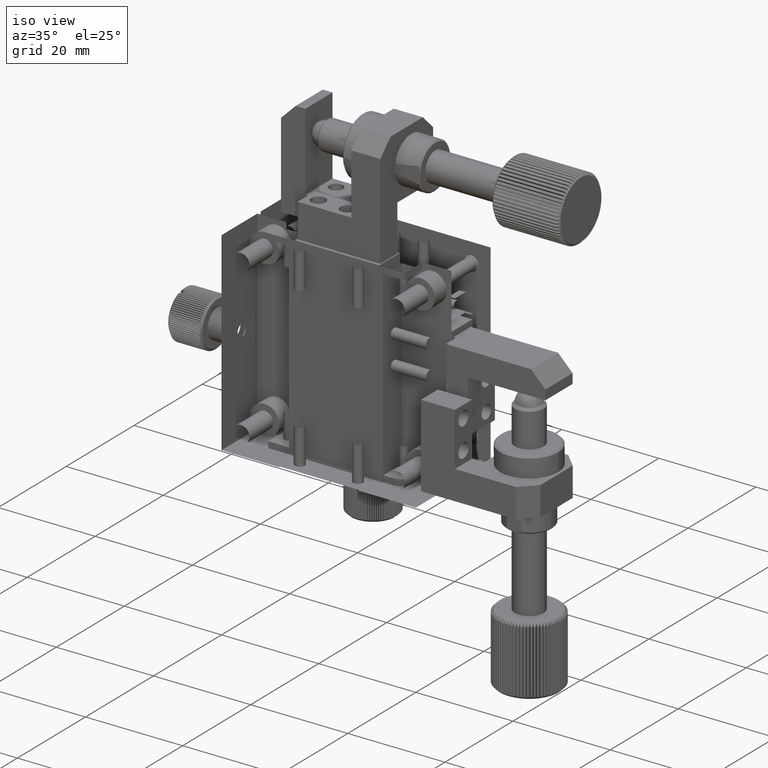
[diagram: clean part render]
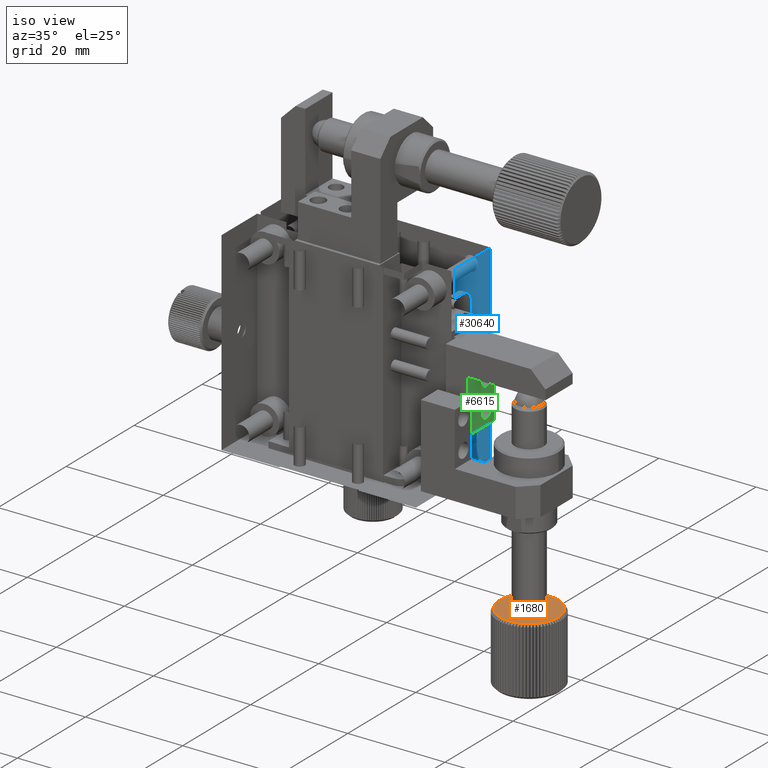
[diagram: same view with three faces highlighted in distinct colors, each labeled with its STEP entity id]
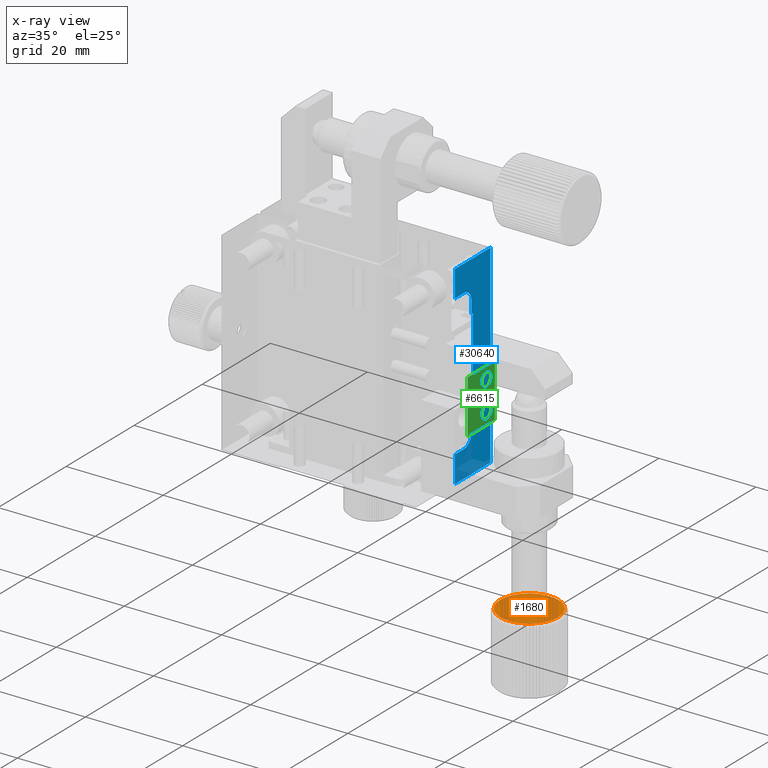
[diagram: x-ray of the same camera — body ghosted, the three highlighted faces saturated]
A machine part, iso view with three faces highlighted in distinct colors.
The next image is the same camera in x-ray (body ghosted, the three faces saturated) — at least one of them is partly hidden behind the body in this view.
Their STEP definitions:

[orange] entity #1680 — the highlighted planar face has unit normal (0, -0, 1).
#76 = DIRECTION ( 'NONE',  ( -1.000000000000000000, 0.000000000000000000, 1.156482317337993595E-15 ) ) ;
#189 = VERTEX_POINT ( 'NONE', #38272 ) ;
#218 = DIRECTION ( 'NONE',  ( 1.683089424086627860E-15, -1.273529896790048237E-16, 1.000000000000000000 ) ) ;
#359 = CARTESIAN_POINT ( 'NONE',  ( 59.07739566440642420, 15.65069276153946731, -58.50083339112189407 ) ) ;
#638 = CARTESIAN_POINT ( 'NONE',  ( 61.00743952227594491, 13.80538188868419169, -58.50083339112189407 ) ) ;
#776 = ORIENTED_EDGE ( 'NONE', *, *, #46297, .T. ) ;
#785 = DIRECTION ( 'NONE',  ( 1.000000000000000000, 0.000000000000000000, 0.000000000000000000 ) ) ;
#854 = CIRCLE ( 'NONE', #38251, 5.999999999895602620 ) ;
#1084 = CARTESIAN_POINT ( 'NONE',  ( 56.00000000005444178, 10.50000000000001954, -58.50083339112189407 ) ) ;
#1092 = CIRCLE ( 'NONE', #10243, 5.999999999895602620 ) ;
#1261 = CARTESIAN_POINT ( 'NONE',  ( 54.92865863126588977, 4.596422468426410113, -58.50083339121179904 ) ) ;
#1423 = CIRCLE ( 'NONE', #8247, 5.999999999895602620 ) ;
#1594 = DIRECTION ( 'NONE',  ( 1.683089424086627860E-15, -1.273529896790048237E-16, 1.000000000000000000 ) ) ;
#1643 = EDGE_CURVE ( 'NONE', #3846, #34545, #3164, .T. ) ;
#1661 = ORIENTED_EDGE ( 'NONE', *, *, #28527, .T. ) ;
#1666 = EDGE_CURVE ( 'NONE', #17003, #4429, #4695, .T. ) ;
#1680 = ADVANCED_FACE ( 'NONE', ( #34156, #33674 ), #11646, .T. ) ;
#1702 = VERTEX_POINT ( 'NONE', #23370 ) ;
#1761 = ORIENTED_EDGE ( 'NONE', *, *, #34316, .T. ) ;
#1768 = EDGE_CURVE ( 'NONE', #45278, #39101, #29146, .T. ) ;
#1865 = CIRCLE ( 'NONE', #24736, 5.999999999895602620 ) ;
#1878 = CARTESIAN_POINT ( 'NONE',  ( 56.00000000005444178, 10.50000000000001954, -58.50083339112189407 ) ) ;
#2180 = DIRECTION ( 'NONE',  ( -1.000000000000000000, 1.156482317337993713E-14, 1.156482317337993595E-15 ) ) ;
#2202 = VERTEX_POINT ( 'NONE', #16624 ) ;
#2319 = DIRECTION ( 'NONE',  ( -1.000000000000000000, -1.879283765674239724E-14, 1.156482317337993595E-15 ) ) ;
#2450 = AXIS2_PLACEMENT_3D ( 'NONE', #44798, #8708, #45267 ) ;
#2496 = ORIENTED_EDGE ( 'NONE', *, *, #25363, .T. ) ;
#2569 = ORIENTED_EDGE ( 'NONE', *, *, #22736, .T. ) ;
#2802 = AXIS2_PLACEMENT_3D ( 'NONE', #42530, #13592, #35612 ) ;
#2811 = AXIS2_PLACEMENT_3D ( 'NONE', #9981, #31562, #9507 ) ;
#2965 = EDGE_CURVE ( 'NONE', #37994, #13581, #46484, .T. ) ;
#3164 = CIRCLE ( 'NONE', #32970, 5.999999999895602620 ) ;
#3185 = EDGE_CURVE ( 'NONE', #6470, #46967, #31258, .T. ) ;
#3281 = VERTEX_POINT ( 'NONE', #638 ) ;
#3291 = VERTEX_POINT ( 'NONE', #37668 ) ;
#3299 = CARTESIAN_POINT ( 'NONE',  ( 56.00000000005444178, 10.50000000000001954, -58.50083339112189407 ) ) ;
#3306 = DIRECTION ( 'NONE',  ( 1.683089424086627860E-15, -1.273529896790048237E-16, 1.000000000000000000 ) ) ;
#3315 = CARTESIAN_POINT ( 'NONE',  ( 56.00000000005444178, 10.50000000000001954, -58.50083339112189407 ) ) ;
#3554 = CIRCLE ( 'NONE', #22655, 5.999999999895602620 ) ;
#3583 = CARTESIAN_POINT ( 'NONE',  ( 56.00000000005444178, 10.50000000000001954, -58.50083339112189407 ) ) ;
#3701 = AXIS2_PLACEMENT_3D ( 'NONE', #41823, #35137, #5959 ) ;
#3846 = VERTEX_POINT ( 'NONE', #24213 ) ;
#3858 = CIRCLE ( 'NONE', #27523, 5.999999999895602620 ) ;
#3882 = VERTEX_POINT ( 'NONE', #16070 ) ;
#3889 = DIRECTION ( 'NONE',  ( -1.000000000000000000, 2.399700808476337029E-14, 1.156482317337993595E-15 ) ) ;
#3908 = CARTESIAN_POINT ( 'NONE',  ( 59.52671151371973224, 15.35410196618572698, -58.50083339112189407 ) ) ;
#4054 = CARTESIAN_POINT ( 'NONE',  ( 51.30901110530621168, 14.24093881106014869, -58.50083339112189407 ) ) ;
#4089 = CARTESIAN_POINT ( 'NONE',  ( 56.00000000005444178, 10.50000000000001954, -58.50083339112189407 ) ) ;
#4096 = CIRCLE ( 'NONE', #22399, 5.999999999895602620 ) ;
#4150 = DIRECTION ( 'NONE',  ( -1.000000000000000000, 3.469446952013980981E-15, 1.156482317337993595E-15 ) ) ;
#4160 = AXIS2_PLACEMENT_3D ( 'NONE', #18124, #21948, #21472 ) ;
#4165 = CARTESIAN_POINT ( 'NONE',  ( 53.89175105557052348, 16.11740922372849028, -58.50083339112188696 ) ) ;
#4241 = VERTEX_POINT ( 'NONE', #24151 ) ;
#4429 = VERTEX_POINT ( 'NONE', #42551 ) ;
#4434 = ORIENTED_EDGE ( 'NONE', *, *, #31369, .T. ) ;
#4569 = EDGE_CURVE ( 'NONE', #14442, #3846, #31387, .T. ) ;
#4589 = VERTEX_POINT ( 'NONE', #17211 ) ;
#4695 = CIRCLE ( 'NONE', #10774, 5.999999999895602620 ) ;
#4771 = CIRCLE ( 'NONE', #44430, 5.999999999895602620 ) ;
#4797 = DIRECTION ( 'NONE',  ( 1.683089424086627860E-15, -1.273529896790048237E-16, 1.000000000000000000 ) ) ;
#4955 = CARTESIAN_POINT ( 'NONE',  ( 56.00000000005444178, 10.50000000000001954, -58.50083339112189407 ) ) ;
#5376 = AXIS2_PLACEMENT_3D ( 'NONE', #40467, #18468, #29741 ) ;
#5451 = DIRECTION ( 'NONE',  ( -1.000000000000000000, 2.486436982276686317E-14, 1.156482317337993595E-15 ) ) ;
#5720 = VERTEX_POINT ( 'NONE', #10558 ) ;
#5736 = CIRCLE ( 'NONE', #26331, 5.999999999895602620 ) ;
#5765 = EDGE_CURVE ( 'NONE', #1702, #37024, #28504, .T. ) ;
#5812 = ORIENTED_EDGE ( 'NONE', *, *, #15160, .T. ) ;
#5814 = AXIS2_PLACEMENT_3D ( 'NONE', #15483, #36545, #11640 ) ;
#5907 = DIRECTION ( 'NONE',  ( 1.683089424086627860E-15, -1.273529896790048237E-16, 1.000000000000000000 ) ) ;
#5912 = CARTESIAN_POINT ( 'NONE',  ( 56.00000000008929391, 4.500000000104416031, -58.50083339112190117 ) ) ;
#5959 = DIRECTION ( 'NONE',  ( -1.000000000000000000, -3.816391647215379394E-14, 1.156482317337993595E-15 ) ) ;
#6041 = DIRECTION ( 'NONE',  ( -1.000000000000000000, 1.763635533940440463E-14, 1.156482317337993595E-15 ) ) ;
#6062 = AXIS2_PLACEMENT_3D ( 'NONE', #26014, #26250, #22425 ) ;
#6121 = ORIENTED_EDGE ( 'NONE', *, *, #32667, .T. ) ;
#6161 = AXIS2_PLACEMENT_3D ( 'NONE', #6217, #20800, #35406 ) ;
#6217 = CARTESIAN_POINT ( 'NONE',  ( 56.00000000005444178, 10.50000000000001954, -58.50083339112189407 ) ) ;
#6225 = AXIS2_PLACEMENT_3D ( 'NONE', #38433, #30804, #5451 ) ;
#6396 = CARTESIAN_POINT ( 'NONE',  ( 56.53783585347338203, 16.47584576395307110, -58.50083339121179904 ) ) ;
#6444 = EDGE_CURVE ( 'NONE', #40970, #26386, #1865, .T. ) ;
#6470 = VERTEX_POINT ( 'NONE', #43323 ) ;
#6716 = ORIENTED_EDGE ( 'NONE', *, *, #13778, .T. ) ;
#6755 = DIRECTION ( 'NONE',  ( 1.683089424086627860E-15, -1.273529896790048237E-16, 1.000000000000000000 ) ) ;
#6823 = DIRECTION ( 'NONE',  ( 1.683089424086627860E-15, -1.273529896790048237E-16, 1.000000000000000000 ) ) ;
#6888 = CIRCLE ( 'NONE', #11502, 5.999999999895602620 ) ;
#6955 = AXIS2_PLACEMENT_3D ( 'NONE', #26277, #8101, #11676 ) ;
#7051 = ORIENTED_EDGE ( 'NONE', *, *, #1768, .T. ) ;
#7116 = DIRECTION ( 'NONE',  ( -1.000000000000000000, -1.243218491138343158E-14, 1.156482317337993595E-15 ) ) ;
#7164 = EDGE_CURVE ( 'NONE', #32762, #7252, #1092, .T. ) ;
#7174 = ORIENTED_EDGE ( 'NONE', *, *, #41277, .T. ) ;
#7179 = VERTEX_POINT ( 'NONE', #16479 ) ;
#7186 = DIRECTION ( 'NONE',  ( -1.000000000000000000, -8.962737959369450604E-15, 1.156482317337993595E-15 ) ) ;
#7207 = VERTEX_POINT ( 'NONE', #7983 ) ;
#7252 = VERTEX_POINT ( 'NONE', #8228 ) ;
#7432 = CIRCLE ( 'NONE', #35742, 5.999999999895602620 ) ;
#7508 = ORIENTED_EDGE ( 'NONE', *, *, #11271, .T. ) ;
#7660 = CARTESIAN_POINT ( 'NONE',  ( 50.71642680902243683, 7.656788025180858881, -58.50083339112189407 ) ) ;
#7668 = ORIENTED_EDGE ( 'NONE', *, *, #20093, .F. ) ;
#7750 = CARTESIAN_POINT ( 'NONE',  ( 60.33676918300545111, 14.64637589390843964, -58.50083339121179904 ) ) ;
#7839 = EDGE_CURVE ( 'NONE', #46694, #23782, #5736, .T. ) ;
#7983 = CARTESIAN_POINT ( 'NONE',  ( 60.69098889484818216, 6.759061188859105229, -58.50083339121179904 ) ) ;
#7989 = DIRECTION ( 'NONE',  ( -1.000000000000000000, 2.602085214010485736E-15, 1.156482317337993595E-15 ) ) ;
#8049 = AXIS2_PLACEMENT_3D ( 'NONE', #8696, #30727, #23272 ) ;
#8101 = DIRECTION ( 'NONE',  ( 1.683089424086627860E-15, -1.273529896790048237E-16, 1.000000000000000000 ) ) ;
#8228 = CARTESIAN_POINT ( 'NONE',  ( 55.46216414667787120, 4.524154236129441564, -58.50083339112190117 ) ) ;
#8247 = AXIS2_PLACEMENT_3D ( 'NONE', #39763, #29504, #11282 ) ;
#8378 = DIRECTION ( 'NONE',  ( -1.000000000000000000, -3.469446952013980981E-15, 1.156482317337993595E-15 ) ) ;
#8465 = DIRECTION ( 'NONE',  ( 1.683089424086627860E-15, -1.273529896790048237E-16, 1.000000000000000000 ) ) ;
#8696 = CARTESIAN_POINT ( 'NONE',  ( 56.00000000005444178, 10.50000000000001954, -58.50083339112189407 ) ) ;
#8708 = DIRECTION ( 'NONE',  ( 1.683089424086627860E-15, -1.273529896790048237E-16, 1.000000000000000000 ) ) ;
#9187 = DIRECTION ( 'NONE',  ( 1.683089424086627860E-15, -1.273529896790048237E-16, 1.000000000000000000 ) ) ;
#9219 = DIRECTION ( 'NONE',  ( 1.683089424086627860E-15, -1.273529896790048237E-16, 1.000000000000000000 ) ) ;
#9254 = AXIS2_PLACEMENT_3D ( 'NONE', #44391, #22664, #26488 ) ;
#9319 = DIRECTION ( 'NONE',  ( 1.683089424086627860E-15, -1.273529896790048237E-16, 1.000000000000000000 ) ) ;
#9355 = ORIENTED_EDGE ( 'NONE', *, *, #36106, .T. ) ;
#9414 = CARTESIAN_POINT ( 'NONE',  ( 56.00000000005444178, 10.50000000000001954, -58.50083339112189407 ) ) ;
#9507 = DIRECTION ( 'NONE',  ( -1.000000000000000000, 0.000000000000000000, 1.156482317337993595E-15 ) ) ;
#9521 = EDGE_CURVE ( 'NONE', #7179, #19360, #24930, .T. ) ;
#9570 = ORIENTED_EDGE ( 'NONE', *, *, #44868, .T. ) ;
#9643 = ORIENTED_EDGE ( 'NONE', *, *, #9521, .T. ) ;
#9948 = AXIS2_PLACEMENT_3D ( 'NONE', #36136, #43752, #25135 ) ;
#9954 = DIRECTION ( 'NONE',  ( 1.683089424086627860E-15, -1.273529896790048237E-16, 1.000000000000000000 ) ) ;
#9979 = VERTEX_POINT ( 'NONE', #32614 ) ;
#9981 = CARTESIAN_POINT ( 'NONE',  ( 56.00000000005444178, 10.50000000000001954, -58.50083339112189407 ) ) ;
#10073 = VERTEX_POINT ( 'NONE', #18691 ) ;
#10232 = CIRCLE ( 'NONE', #17889, 5.999999999895602620 ) ;
#10243 = AXIS2_PLACEMENT_3D ( 'NONE', #35373, #35609, #27490 ) ;
#10325 = VERTEX_POINT ( 'NONE', #22198 ) ;
#10403 = AXIS2_PLACEMENT_3D ( 'NONE', #4955, #19532, #30314 ) ;
#10527 = ORIENTED_EDGE ( 'NONE', *, *, #1643, .T. ) ;
#10556 = DIRECTION ( 'NONE',  ( -1.000000000000000000, 1.416690838739042208E-14, 1.156482317337993595E-15 ) ) ;
#10558 = CARTESIAN_POINT ( 'NONE',  ( 51.66323081718960708, 6.353624106125824511, -58.50083339112189407 ) ) ;
#10690 = EDGE_CURVE ( 'NONE', #28713, #31111, #36466, .T. ) ;
#10702 = EDGE_CURVE ( 'NONE', #47184, #15347, #19631, .T. ) ;
#10729 = ORIENTED_EDGE ( 'NONE', *, *, #22661, .T. ) ;
#10755 = DIRECTION ( 'NONE',  ( 1.683089424086627860E-15, -1.273529896790048237E-16, 1.000000000000000000 ) ) ;
#10757 = AXIS2_PLACEMENT_3D ( 'NONE', #13251, #30981, #45514 ) ;
#10774 = AXIS2_PLACEMENT_3D ( 'NONE', #18830, #30573, #44621 ) ;
#10849 = CARTESIAN_POINT ( 'NONE',  ( 61.70633909780779902, 8.645898033756017398, -58.50083339121179904 ) ) ;
#10885 = ORIENTED_EDGE ( 'NONE', *, *, #7839, .T. ) ;
#10945 = CARTESIAN_POINT ( 'NONE',  ( 52.47328848638910159, 5.645898033814348516, -58.50083339112189407 ) ) ;
#11093 = DIRECTION ( 'NONE',  ( 1.683089424086627860E-15, -1.273529896790048237E-16, 1.000000000000000000 ) ) ;
#11239 = ORIENTED_EDGE ( 'NONE', *, *, #25294, .T. ) ;
#11268 = CARTESIAN_POINT ( 'NONE',  ( 56.00000000005444178, 10.50000000000001954, -58.50083339112189407 ) ) ;
#11271 = EDGE_CURVE ( 'NONE', #40918, #44178, #24281, .T. ) ;
#11282 = DIRECTION ( 'NONE',  ( -1.000000000000000000, 3.469446952013980981E-15, 1.156482317337993595E-15 ) ) ;
#11294 = CARTESIAN_POINT ( 'NONE',  ( 58.60330243474585643, 5.094186792694664234, -58.50083339112190117 ) ) ;
#11397 = DIRECTION ( 'NONE',  ( 1.683089424086627860E-15, -1.273529896790048237E-16, 1.000000000000000000 ) ) ;
#11502 = AXIS2_PLACEMENT_3D ( 'NONE', #31755, #20252, #46755 ) ;
#11539 = ORIENTED_EDGE ( 'NONE', *, *, #31102, .T. ) ;
#11640 = DIRECTION ( 'NONE',  ( -1.000000000000000000, 0.000000000000000000, 1.156482317337993595E-15 ) ) ;
#11646 = PLANE ( 'NONE',  #9254 ) ;
#11676 = DIRECTION ( 'NONE',  ( -1.000000000000000000, 0.000000000000000000, 1.156482317337993595E-15 ) ) ;
#11893 = EDGE_CURVE ( 'NONE', #39101, #17003, #44114, .T. ) ;
#12232 = DIRECTION ( 'NONE',  ( 5.828670879282070851E-16, -1.110223024625156294E-16, 1.000000000000000000 ) ) ;
#12279 = ORIENTED_EDGE ( 'NONE', *, *, #10702, .T. ) ;
#12365 = CIRCLE ( 'NONE', #24606, 5.999999999895602620 ) ;
#12433 = AXIS2_PLACEMENT_3D ( 'NONE', #19389, #42038, #40906 ) ;
#12565 = VERTEX_POINT ( 'NONE', #35260 ) ;
#12661 = CARTESIAN_POINT ( 'NONE',  ( 61.99395839919959883, 10.23081101793639824, -58.50083339112189407 ) ) ;
#12691 = ORIENTED_EDGE ( 'NONE', *, *, #19193, .T. ) ;
#12789 = CARTESIAN_POINT ( 'NONE',  ( 56.00000000005444178, 10.50000000000001954, -58.50083339112189407 ) ) ;
#12850 = DIRECTION ( 'NONE',  ( -1.000000000000000000, -8.962737959369450604E-15, 1.156482317337993595E-15 ) ) ;
#12933 = CARTESIAN_POINT ( 'NONE',  ( 56.00000000005444178, 10.50000000000001954, -58.50083339112189407 ) ) ;
#13031 = DIRECTION ( 'NONE',  ( 1.683089424086627860E-15, -1.273529896790048237E-16, 1.000000000000000000 ) ) ;
#13214 = DIRECTION ( 'NONE',  ( -1.000000000000000000, 1.156482317337993713E-14, 1.156482317337993595E-15 ) ) ;
#13251 = CARTESIAN_POINT ( 'NONE',  ( 56.00000000005444178, 10.50000000000001954, -58.50083339112189407 ) ) ;
#13356 = CIRCLE ( 'NONE', #21738, 5.999999999895602620 ) ;
#13405 = CARTESIAN_POINT ( 'NONE',  ( 50.48283336485541639, 8.141849810085517447, -58.50083339112189407 ) ) ;
#13446 = DIRECTION ( 'NONE',  ( 1.683089424086627860E-15, -1.273529896790048237E-16, 1.000000000000000000 ) ) ;
#13581 = VERTEX_POINT ( 'NONE', #39074 ) ;
#13592 = DIRECTION ( 'NONE',  ( 1.683089424086627860E-15, -1.273529896790048237E-16, 1.000000000000000000 ) ) ;
#13704 = DIRECTION ( 'NONE',  ( -1.000000000000000000, -2.312964634675987426E-14, 1.156482317337993595E-15 ) ) ;
#13728 = EDGE_CURVE ( 'NONE', #7252, #25219, #13746, .T. ) ;
#13746 = CIRCLE ( 'NONE', #40470, 5.999999999895602620 ) ;
#13778 = EDGE_CURVE ( 'NONE', #5720, #33862, #25961, .T. ) ;
#13878 = CIRCLE ( 'NONE', #26849, 5.999999999895602620 ) ;
#13903 = AXIS2_PLACEMENT_3D ( 'NONE', #3583, #47287, #36564 ) ;
#14007 = AXIS2_PLACEMENT_3D ( 'NONE', #12933, #41157, #44726 ) ;
#14028 = VERTEX_POINT ( 'NONE', #39242 ) ;
#14162 = EDGE_CURVE ( 'NONE', #21328, #3291, #31338, .T. ) ;
#14183 = CIRCLE ( 'NONE', #31006, 5.999999999895602620 ) ;
#14363 = DIRECTION ( 'NONE',  ( -1.000000000000000000, -2.399700808476337029E-14, 1.156482317337993595E-15 ) ) ;
#14399 = VERTEX_POINT ( 'NONE', #41906 ) ;
#14442 = VERTEX_POINT ( 'NONE', #45463 ) ;
#14469 = DIRECTION ( 'NONE',  ( -1.000000000000000000, 6.360652745358964868E-15, 1.156482317337993595E-15 ) ) ;
#14927 = CIRCLE ( 'NONE', #24873, 5.999999999895602620 ) ;
#14997 = CARTESIAN_POINT ( 'NONE',  ( 56.00000000005444178, 10.50000000000001954, -58.50083339112189407 ) ) ;
#15143 = CARTESIAN_POINT ( 'NONE',  ( 50.15043252705754639, 11.83512560368076372, -58.50083339112189407 ) ) ;
#15160 = EDGE_CURVE ( 'NONE', #31111, #47184, #35246, .T. ) ;
#15257 = ORIENTED_EDGE ( 'NONE', *, *, #35512, .T. ) ;
#15347 = VERTEX_POINT ( 'NONE', #28818 ) ;
#15424 = CIRCLE ( 'NONE', #29952, 5.999999999895602620 ) ;
#15483 = CARTESIAN_POINT ( 'NONE',  ( 56.00000000005444178, 10.50000000000001954, -58.50083339112189407 ) ) ;
#15588 = DIRECTION ( 'NONE',  ( -1.000000000000000000, 0.000000000000000000, 1.156482317337993595E-15 ) ) ;
#15667 = EDGE_CURVE ( 'NONE', #3291, #35174, #39833, .T. ) ;
#15710 = CIRCLE ( 'NONE', #8049, 5.999999999895602620 ) ;
#15786 = CIRCLE ( 'NONE', #29529, 5.999999999895602620 ) ;
#15791 = EDGE_CURVE ( 'NONE', #23782, #7179, #3858, .T. ) ;
#15818 = VERTEX_POINT ( 'NONE', #19635 ) ;
#15827 = CARTESIAN_POINT ( 'NONE',  ( 56.00000000005444178, 10.50000000000001954, -58.50083339112189407 ) ) ;
#15835 = AXIS2_PLACEMENT_3D ( 'NONE', #42154, #13446, #38330 ) ;
#15920 = ORIENTED_EDGE ( 'NONE', *, *, #27134, .T. ) ;
#15953 = DIRECTION ( 'NONE',  ( -1.000000000000000000, 0.000000000000000000, 1.156482317337993595E-15 ) ) ;
#16070 = CARTESIAN_POINT ( 'NONE',  ( 61.94569857056328033, 9.694600405142608679, -58.50083339112189407 ) ) ;
#16078 = DIRECTION ( 'NONE',  ( 1.683089424086627860E-15, -1.273529896790048237E-16, 1.000000000000000000 ) ) ;
#16176 = CARTESIAN_POINT ( 'NONE',  ( 56.00000000005444178, 10.50000000000001954, -58.50083339112189407 ) ) ;
#16387 = ORIENTED_EDGE ( 'NONE', *, *, #28992, .T. ) ;
#16479 = CARTESIAN_POINT ( 'NONE',  ( 50.71642680898946765, 13.34321197475792076, -58.50083339112189407 ) ) ;
#16588 = CARTESIAN_POINT ( 'NONE',  ( 56.00000000005444178, 10.50000000000001954, -58.50083339112189407 ) ) ;
#16624 = CARTESIAN_POINT ( 'NONE',  ( 50.29366090230106323, 8.645898033756086676, -58.50083339121179904 ) ) ;
#16684 = VERTEX_POINT ( 'NONE', #20166 ) ;
#16941 = ORIENTED_EDGE ( 'NONE', *, *, #22191, .T. ) ;
#16957 = CIRCLE ( 'NONE', #37532, 5.999999999895602620 ) ;
#16964 = DIRECTION ( 'NONE',  ( 1.683089424086627860E-15, -1.273529896790048237E-16, 1.000000000000000000 ) ) ;
#17003 = VERTEX_POINT ( 'NONE', #28478 ) ;
#17039 = VERTEX_POINT ( 'NONE', #13405 ) ;
#17211 = CARTESIAN_POINT ( 'NONE',  ( 61.84956747303585445, 11.83512560374864542, -58.50083339112189407 ) ) ;
#17212 = CIRCLE ( 'NONE', #29453, 5.999999999895602620 ) ;
#17376 = AXIS2_PLACEMENT_3D ( 'NONE', #46104, #16964, #45630 ) ;
#17400 = ORIENTED_EDGE ( 'NONE', *, *, #18250, .T. ) ;
#17608 = CARTESIAN_POINT ( 'NONE',  ( 53.39669756542573964, 5.094186792664466168, -58.50083339112189407 ) ) ;
#17743 = EDGE_CURVE ( 'NONE', #19360, #12565, #29156, .T. ) ;
#17889 = AXIS2_PLACEMENT_3D ( 'NONE', #4089, #10755, #14363 ) ;
#17981 = CIRCLE ( 'NONE', #24901, 5.999999999895602620 ) ;
#18027 = CIRCLE ( 'NONE', #44732, 5.999999999895602620 ) ;
#18124 = CARTESIAN_POINT ( 'NONE',  ( 56.00000000005444178, 10.50000000000001954, -58.50083339112189407 ) ) ;
#18149 = ORIENTED_EDGE ( 'NONE', *, *, #5765, .T. ) ;
#18250 = EDGE_CURVE ( 'NONE', #43026, #33520, #15424, .T. ) ;
#18348 = AXIS2_PLACEMENT_3D ( 'NONE', #44008, #47120, #10556 ) ;
#18444 = ORIENTED_EDGE ( 'NONE', *, *, #10690, .T. ) ;
#18468 = DIRECTION ( 'NONE',  ( 1.683089424086627860E-15, -1.273529896790048237E-16, 1.000000000000000000 ) ) ;
#18505 = CIRCLE ( 'NONE', #26962, 5.999999999895602620 ) ;
#18576 = CARTESIAN_POINT ( 'NONE',  ( 60.33676918296739444, 6.353624106176140707, -58.50083339112189407 ) ) ;
#18667 = CARTESIAN_POINT ( 'NONE',  ( 56.00000000005444178, 10.50000000000001954, -58.50083339112189407 ) ) ;
#18691 = CARTESIAN_POINT ( 'NONE',  ( 60.69098889475927194, 14.24093881111457272, -58.50083339112189407 ) ) ;
#18828 = CARTESIAN_POINT ( 'NONE',  ( 56.00000000005444178, 10.50000000000001954, -58.50083339112189407 ) ) ;
#18830 = CARTESIAN_POINT ( 'NONE',  ( 56.00000000005444178, 10.50000000000001954, -58.50083339112189407 ) ) ;
#18952 = CARTESIAN_POINT ( 'NONE',  ( 56.00000000005444178, 10.50000000000001776, -58.50083339121179904 ) ) ;
#18987 = ORIENTED_EDGE ( 'NONE', *, *, #31879, .T. ) ;
#19017 = DIRECTION ( 'NONE',  ( -1.000000000000000000, 0.000000000000000000, 1.156482317337993595E-15 ) ) ;
#19177 = AXIS2_PLACEMENT_3D ( 'NONE', #21383, #13031, #28116 ) ;
#19193 = EDGE_CURVE ( 'NONE', #10073, #25327, #34087, .T. ) ;
#19244 = CIRCLE ( 'NONE', #45941, 5.999999999895602620 ) ;
#19360 = VERTEX_POINT ( 'NONE', #26710 ) ;
#19365 = CIRCLE ( 'NONE', #23181, 5.999999999895602620 ) ;
#19382 = ORIENTED_EDGE ( 'NONE', *, *, #34896, .T. ) ;
#19389 = CARTESIAN_POINT ( 'NONE',  ( 56.00000000005444178, 10.50000000000001954, -58.50083339112189407 ) ) ;
#19406 = AXIS2_PLACEMENT_3D ( 'NONE', #33527, #25215, #8378 ) ;
#19415 = DIRECTION ( 'NONE',  ( 1.683089424086627860E-15, -1.273529896790048237E-16, 1.000000000000000000 ) ) ;
#19448 = ORIENTED_EDGE ( 'NONE', *, *, #15667, .T. ) ;
#19493 = AXIS2_PLACEMENT_3D ( 'NONE', #3299, #35360, #38705 ) ;
#19531 = ORIENTED_EDGE ( 'NONE', *, *, #46632, .T. ) ;
#19532 = DIRECTION ( 'NONE',  ( 1.683089424086627860E-15, -1.273529896790048237E-16, 1.000000000000000000 ) ) ;
#19617 = CARTESIAN_POINT ( 'NONE',  ( 56.00000000005444178, 10.50000000000001954, -58.50083339112189407 ) ) ;
#19631 = CIRCLE ( 'NONE', #21955, 5.999999999895602620 ) ;
#19635 = CARTESIAN_POINT ( 'NONE',  ( 51.66323081710348930, 14.64637589390849115, -58.50083339121179193 ) ) ;
#19768 = ORIENTED_EDGE ( 'NONE', *, *, #29910, .T. ) ;
#19813 = CARTESIAN_POINT ( 'NONE',  ( 52.05236764451105103, 5.981571204034086264, -58.50083339112189407 ) ) ;
#19875 = ORIENTED_EDGE ( 'NONE', *, *, #2965, .T. ) ;
#19960 = DIRECTION ( 'NONE',  ( 1.683089424086627860E-15, -1.273529896790048237E-16, 1.000000000000000000 ) ) ;
#19986 = CIRCLE ( 'NONE', #26083, 5.999999999895602620 ) ;
#19992 = CIRCLE ( 'NONE', #31499, 5.999999999895602620 ) ;
#20002 = ORIENTED_EDGE ( 'NONE', *, *, #7164, .T. ) ;
#20093 = EDGE_CURVE ( 'NONE', #35874, #35874, #22665, .T. ) ;
#20129 = CIRCLE ( 'NONE', #46819, 5.999999999895602620 ) ;
#20166 = CARTESIAN_POINT ( 'NONE',  ( 52.05236764445866982, 15.01842879592018853, -58.50083339112188696 ) ) ;
#20252 = DIRECTION ( 'NONE',  ( 1.683089424086627860E-15, -1.273529896790048237E-16, 1.000000000000000000 ) ) ;
#20321 = CARTESIAN_POINT ( 'NONE',  ( 56.00000000005444178, 10.50000000000001954, -58.50083339112189407 ) ) ;
#20380 = EDGE_CURVE ( 'NONE', #33366, #5720, #37967, .T. ) ;
#20487 = CARTESIAN_POINT ( 'NONE',  ( 58.10824894447319622, 16.11740922375295071, -58.50083339112189407 ) ) ;
#20800 = DIRECTION ( 'NONE',  ( 1.683089424086627860E-15, -1.273529896790048237E-16, 1.000000000000000000 ) ) ;
#20826 = DIRECTION ( 'NONE',  ( -1.000000000000000000, 0.000000000000000000, 1.156482317337993595E-15 ) ) ;
#20846 = DIRECTION ( 'NONE',  ( 1.683089424086627860E-15, -1.273529896790048237E-16, 1.000000000000000000 ) ) ;
#20935 = DIRECTION ( 'NONE',  ( -1.000000000000000000, 0.000000000000000000, 1.156482317337993595E-15 ) ) ;
#21042 = CIRCLE ( 'NONE', #33276, 5.999999999895602620 ) ;
#21209 = DIRECTION ( 'NONE',  ( -1.000000000000000000, -1.416690838739042208E-14, 1.156482317337993595E-15 ) ) ;
#21328 = VERTEX_POINT ( 'NONE', #44151 ) ;
#21383 = CARTESIAN_POINT ( 'NONE',  ( 56.00000000005444178, 10.50000000000001954, -58.50083339112189407 ) ) ;
#21435 = CARTESIAN_POINT ( 'NONE',  ( 56.00000000005444178, 10.50000000000001954, -58.50083339112189407 ) ) ;
#21472 = DIRECTION ( 'NONE',  ( -1.000000000000000000, -1.329954664938692762E-14, 1.156482317337993595E-15 ) ) ;
#21582 = DIRECTION ( 'NONE',  ( 1.683089424086627860E-15, -1.273529896790048237E-16, 1.000000000000000000 ) ) ;
#21588 = DIRECTION ( 'NONE',  ( 1.683089424086627860E-15, -1.273529896790048237E-16, 1.000000000000000000 ) ) ;
#21738 = AXIS2_PLACEMENT_3D ( 'NONE', #1084, #9187, #45030 ) ;
#21948 = DIRECTION ( 'NONE',  ( 1.683089424086627860E-15, -1.273529896790048237E-16, 1.000000000000000000 ) ) ;
#21955 = AXIS2_PLACEMENT_3D ( 'NONE', #24224, #16078, #13214 ) ;
#21997 = EDGE_CURVE ( 'NONE', #33520, #32762, #1423, .T. ) ;
#22191 = EDGE_CURVE ( 'NONE', #35827, #14028, #10232, .T. ) ;
#22198 = CARTESIAN_POINT ( 'NONE',  ( 55.46216414663557259, 16.47584576395306755, -58.50083339121179904 ) ) ;
#22273 = AXIS2_PLACEMENT_3D ( 'NONE', #45556, #46032, #42699 ) ;
#22399 = AXIS2_PLACEMENT_3D ( 'NONE', #35944, #24245, #38833 ) ;
#22414 = DIRECTION ( 'NONE',  ( -1.000000000000000000, -8.673617380034952452E-16, 1.156482317337993595E-15 ) ) ;
#22425 = DIRECTION ( 'NONE',  ( -1.000000000000000000, 3.989863994816077970E-14, 1.156482317337993595E-15 ) ) ;
#22500 = AXIS2_PLACEMENT_3D ( 'NONE', #34845, #1594, #45067 ) ;
#22655 = AXIS2_PLACEMENT_3D ( 'NONE', #25519, #3306, #32726 ) ;
#22661 = EDGE_CURVE ( 'NONE', #38208, #21328, #13356, .T. ) ;
#22664 = DIRECTION ( 'NONE',  ( 5.828670879282070851E-16, -1.110223024625156540E-16, 1.000000000000000000 ) ) ;
#22665 = CIRCLE ( 'NONE', #28044, 2.999999999999995559 ) ;
#22736 = EDGE_CURVE ( 'NONE', #9979, #39764, #32453, .T. ) ;
#22866 = ORIENTED_EDGE ( 'NONE', *, *, #32493, .T. ) ;
#23181 = AXIS2_PLACEMENT_3D ( 'NONE', #3315, #11397, #25528 ) ;
#23226 = CARTESIAN_POINT ( 'NONE',  ( 61.28357319108643253, 13.34321197481922106, -58.50083339112189407 ) ) ;
#23272 = DIRECTION ( 'NONE',  ( -1.000000000000000000, 1.590163186339741257E-14, 1.156482317337993595E-15 ) ) ;
#23297 = CARTESIAN_POINT ( 'NONE',  ( 56.00000000005444178, 10.50000000000001954, -58.50083339112189407 ) ) ;
#23370 = CARTESIAN_POINT ( 'NONE',  ( 50.00604160082500727, 10.76918898210233522, -58.50083339121179193 ) ) ;
#23441 = ORIENTED_EDGE ( 'NONE', *, *, #35619, .T. ) ;
#23552 = EDGE_CURVE ( 'NONE', #4589, #189, #32497, .T. ) ;
#23581 = CARTESIAN_POINT ( 'NONE',  ( 56.00000000005444178, 10.50000000000001954, -58.50083339112189407 ) ) ;
#23680 = ORIENTED_EDGE ( 'NONE', *, *, #42507, .T. ) ;
#23782 = VERTEX_POINT ( 'NONE', #27428 ) ;
#23849 = EDGE_CURVE ( 'NONE', #46967, #2202, #17981, .T. ) ;
#23851 = CIRCLE ( 'NONE', #13903, 5.999999999895602620 ) ;
#23984 = VERTEX_POINT ( 'NONE', #359 ) ;
#24016 = DIRECTION ( 'NONE',  ( -1.000000000000000000, 6.360652745358964868E-15, 1.156482317337993595E-15 ) ) ;
#24147 = EDGE_CURVE ( 'NONE', #36299, #4589, #15710, .T. ) ;
#24148 = ORIENTED_EDGE ( 'NONE', *, *, #43876, .T. ) ;
#24151 = CARTESIAN_POINT ( 'NONE',  ( 61.99395839928388341, 10.76918898210226594, -58.50083339121179904 ) ) ;
#24213 = CARTESIAN_POINT ( 'NONE',  ( 59.52671151377608538, 5.645898033855258902, -58.50083339112190117 ) ) ;
#24224 = CARTESIAN_POINT ( 'NONE',  ( 56.00000000005444178, 10.50000000000001954, -58.50083339112189407 ) ) ;
#24245 = DIRECTION ( 'NONE',  ( 1.683089424086627860E-15, -1.273529896790048237E-16, 1.000000000000000000 ) ) ;
#24281 = CIRCLE ( 'NONE', #17376, 5.999999999895602620 ) ;
#24571 = ORIENTED_EDGE ( 'NONE', *, *, #23849, .T. ) ;
#24606 = AXIS2_PLACEMENT_3D ( 'NONE', #39470, #42350, #20826 ) ;
#24653 = EDGE_CURVE ( 'NONE', #4429, #16684, #24936, .T. ) ;
#24736 = AXIS2_PLACEMENT_3D ( 'NONE', #16588, #31205, #37634 ) ;
#24746 = EDGE_LOOP ( 'NONE', ( #22866, #19382, #16941, #23680, #7051, #27403, #42327, #36448, #19531, #19768, #10885, #44686, #9643, #35005, #26649, #7174, #1661, #18149, #32069, #45351, #24571, #23441, #11539, #31829, #2496, #43154, #6716, #28267, #29231, #7508, #11239, #17400, #33159, #20002, #31082, #15920, #32613, #776, #26329, #2569, #34178, #43074, #10527, #9570, #43695, #37386, #10729, #39858, #19448, #6121, #15257, #40680, #27535, #33695, #36179, #28248, #1761, #33447, #41537, #30636, #12691, #9355, #24148, #18987, #4434, #18444, #5812, #12279, #16387, #19875 ) ) ;
#24782 = VERTEX_POINT ( 'NONE', #28911 ) ;
#24873 = AXIS2_PLACEMENT_3D ( 'NONE', #1878, #30814, #12850 ) ;
#24901 = AXIS2_PLACEMENT_3D ( 'NONE', #35780, #28360, #20935 ) ;
#24930 = CIRCLE ( 'NONE', #10403, 5.999999999895602620 ) ;
#24936 = CIRCLE ( 'NONE', #2802, 5.999999999895602620 ) ;
#25135 = DIRECTION ( 'NONE',  ( -1.000000000000000000, 0.000000000000000000, 1.156482317337993595E-15 ) ) ;
#25215 = DIRECTION ( 'NONE',  ( 1.683089424086627860E-15, -1.273529896790048237E-16, 1.000000000000000000 ) ) ;
#25219 = VERTEX_POINT ( 'NONE', #5912 ) ;
#25294 = EDGE_CURVE ( 'NONE', #44178, #43026, #19244, .T. ) ;
#25327 = VERTEX_POINT ( 'NONE', #7750 ) ;
#25363 = EDGE_CURVE ( 'NONE', #36039, #33366, #13878, .T. ) ;
#25439 = EDGE_CURVE ( 'NONE', #7207, #38208, #39087, .T. ) ;
#25519 = CARTESIAN_POINT ( 'NONE',  ( 56.00000000005444178, 10.50000000000001954, -58.50083339112189407 ) ) ;
#25528 = DIRECTION ( 'NONE',  ( -1.000000000000000000, -1.966019939474589328E-14, 1.156482317337993595E-15 ) ) ;
#25702 = DIRECTION ( 'NONE',  ( -1.000000000000000000, -1.966019939474589328E-14, 1.156482317337993595E-15 ) ) ;
#25726 = DIRECTION ( 'NONE',  ( 1.683089424086627860E-15, -1.273529896790048237E-16, 1.000000000000000000 ) ) ;
#25887 = CARTESIAN_POINT ( 'NONE',  ( 56.00000000005444178, 10.50000000000001954, -58.50083339112189407 ) ) ;
#25961 = CIRCLE ( 'NONE', #5376, 5.999999999895602620 ) ;
#26014 = CARTESIAN_POINT ( 'NONE',  ( 56.00000000005444178, 10.50000000000001954, -58.50083339112189407 ) ) ;
#26083 = AXIS2_PLACEMENT_3D ( 'NONE', #41967, #30760, #26920 ) ;
#26250 = DIRECTION ( 'NONE',  ( 1.683089424086627860E-15, -1.273529896790048237E-16, 1.000000000000000000 ) ) ;
#26277 = CARTESIAN_POINT ( 'NONE',  ( 56.00000000005444178, 10.50000000000001954, -58.50083339112189407 ) ) ;
#26329 = ORIENTED_EDGE ( 'NONE', *, *, #33323, .T. ) ;
#26331 = AXIS2_PLACEMENT_3D ( 'NONE', #45356, #45116, #41807 ) ;
#26386 = VERTEX_POINT ( 'NONE', #27101 ) ;
#26427 = CARTESIAN_POINT ( 'NONE',  ( 56.00000000005444178, 10.50000000000001954, -58.50083339112189407 ) ) ;
#26488 = DIRECTION ( 'NONE',  ( 1.000000000000000000, 0.000000000000000000, -5.828670879282070851E-16 ) ) ;
#26649 = ORIENTED_EDGE ( 'NONE', *, *, #37393, .T. ) ;
#26653 = DIRECTION ( 'NONE',  ( -1.000000000000000000, 1.503427012539391653E-14, 1.156482317337993595E-15 ) ) ;
#26700 = VERTEX_POINT ( 'NONE', #7660 ) ;
#26710 = CARTESIAN_POINT ( 'NONE',  ( 50.48283336476274030, 12.85815018991635839, -58.50083339121179193 ) ) ;
#26716 = DIRECTION ( 'NONE',  ( 1.683089424086627860E-15, -1.273529896790048237E-16, 1.000000000000000000 ) ) ;
#26849 = AXIS2_PLACEMENT_3D ( 'NONE', #40757, #8465, #7989 ) ;
#26920 = DIRECTION ( 'NONE',  ( -1.000000000000000000, -1.734723476006990490E-15, 1.156482317337993595E-15 ) ) ;
#26962 = AXIS2_PLACEMENT_3D ( 'NONE', #23581, #9219, #2319 ) ;
#27101 = CARTESIAN_POINT ( 'NONE',  ( 57.07134136884292985, 4.596422468426400343, -58.50083339121179904 ) ) ;
#27134 = EDGE_CURVE ( 'NONE', #25219, #40970, #27626, .T. ) ;
#27403 = ORIENTED_EDGE ( 'NONE', *, *, #11893, .T. ) ;
#27417 = AXIS2_PLACEMENT_3D ( 'NONE', #20321, #9319, #2180 ) ;
#27428 = CARTESIAN_POINT ( 'NONE',  ( 50.99256047779459067, 13.80538188862609061, -58.50083339112189407 ) ) ;
#27448 = CARTESIAN_POINT ( 'NONE',  ( 61.84956747305135849, 9.164874396319317995, -58.50083339112189407 ) ) ;
#27490 = DIRECTION ( 'NONE',  ( -1.000000000000000000, 0.000000000000000000, 1.156482317337993595E-15 ) ) ;
#27509 = DIRECTION ( 'NONE',  ( -1.000000000000000000, -1.763635533940440463E-14, 1.156482317337993595E-15 ) ) ;
#27523 = AXIS2_PLACEMENT_3D ( 'NONE', #18667, #36393, #32814 ) ;
#27535 = ORIENTED_EDGE ( 'NONE', *, *, #43306, .T. ) ;
#27626 = CIRCLE ( 'NONE', #6955, 5.999999999895602620 ) ;
#27793 = EDGE_CURVE ( 'NONE', #3281, #10073, #12365, .T. ) ;
#27990 = CIRCLE ( 'NONE', #2811, 5.999999999895602620 ) ;
#28044 = AXIS2_PLACEMENT_3D ( 'NONE', #18952, #12232, #785 ) ;
#28056 = CIRCLE ( 'NONE', #28809, 5.999999999895602620 ) ;
#28101 = CIRCLE ( 'NONE', #31147, 5.999999999895602620 ) ;
#28116 = DIRECTION ( 'NONE',  ( -1.000000000000000000, -3.382710778213631693E-14, 1.156482317337993595E-15 ) ) ;
#28248 = ORIENTED_EDGE ( 'NONE', *, *, #23552, .T. ) ;
#28267 = ORIENTED_EDGE ( 'NONE', *, *, #30225, .T. ) ;
#28360 = DIRECTION ( 'NONE',  ( 1.683089424086627860E-15, -1.273529896790048237E-16, 1.000000000000000000 ) ) ;
#28381 = CARTESIAN_POINT ( 'NONE',  ( 50.05430142954561745, 11.30539959485746593, -58.50083339112189407 ) ) ;
#28478 = CARTESIAN_POINT ( 'NONE',  ( 52.92260433564270272, 15.65069276150376432, -58.50083339112188696 ) ) ;
#28504 = CIRCLE ( 'NONE', #12433, 5.999999999895602620 ) ;
#28527 = EDGE_CURVE ( 'NONE', #31070, #1702, #18505, .T. ) ;
#28612 = CIRCLE ( 'NONE', #4160, 5.999999999895602620 ) ;
#28713 = VERTEX_POINT ( 'NONE', #33121 ) ;
#28809 = AXIS2_PLACEMENT_3D ( 'NONE', #16176, #5907, #44855 ) ;
#28818 = CARTESIAN_POINT ( 'NONE',  ( 57.07134136879334108, 16.40357753149530140, -58.50083339112189407 ) ) ;
#28911 = CARTESIAN_POINT ( 'NONE',  ( 57.59622107346028486, 4.716222835934795299, -58.50083339112190117 ) ) ;
#28984 = DIRECTION ( 'NONE',  ( 1.683089424086627860E-15, -1.273529896790048237E-16, 1.000000000000000000 ) ) ;
#28992 = EDGE_CURVE ( 'NONE', #15347, #37994, #4096, .T. ) ;
#29146 = CIRCLE ( 'NONE', #6225, 5.999999999895602620 ) ;
#29149 = EDGE_CURVE ( 'NONE', #37024, #6470, #42252, .T. ) ;
#29156 = CIRCLE ( 'NONE', #22273, 5.999999999895602620 ) ;
#29231 = ORIENTED_EDGE ( 'NONE', *, *, #40015, .T. ) ;
#29253 = CARTESIAN_POINT ( 'NONE',  ( 56.00000000005444178, 10.50000000000001954, -58.50083339112189407 ) ) ;
#29453 = AXIS2_PLACEMENT_3D ( 'NONE', #40049, #11093, #25702 ) ;
#29504 = DIRECTION ( 'NONE',  ( 1.683089424086627860E-15, -1.273529896790048237E-16, 1.000000000000000000 ) ) ;
#29529 = AXIS2_PLACEMENT_3D ( 'NONE', #39896, #218, #7116 ) ;
#29741 = DIRECTION ( 'NONE',  ( -1.000000000000000000, -5.204170428020971471E-15, 1.156482317337993595E-15 ) ) ;
#29905 = EDGE_CURVE ( 'NONE', #39764, #14442, #19365, .T. ) ;
#29910 = EDGE_CURVE ( 'NONE', #15818, #46694, #28612, .T. ) ;
#29952 = AXIS2_PLACEMENT_3D ( 'NONE', #12789, #30753, #34813 ) ;
#30225 = EDGE_CURVE ( 'NONE', #33862, #46593, #36240, .T. ) ;
#30314 = DIRECTION ( 'NONE',  ( -1.000000000000000000, -7.228014483362460114E-15, 1.156482317337993595E-15 ) ) ;
#30336 = CARTESIAN_POINT ( 'NONE',  ( 56.00000000005444178, 10.50000000000001954, -58.50083339112189407 ) ) ;
#30445 = CARTESIAN_POINT ( 'NONE',  ( 56.00000000005444178, 10.50000000000001954, -58.50083339112189407 ) ) ;
#30573 = DIRECTION ( 'NONE',  ( 1.683089424086627860E-15, -1.273529896790048237E-16, 1.000000000000000000 ) ) ;
#30636 = ORIENTED_EDGE ( 'NONE', *, *, #27793, .T. ) ;
#30677 = DIRECTION ( 'NONE',  ( 1.683089424086627860E-15, -1.273529896790048237E-16, 1.000000000000000000 ) ) ;
#30727 = DIRECTION ( 'NONE',  ( 1.683089424086627860E-15, -1.273529896790048237E-16, 1.000000000000000000 ) ) ;
#30753 = DIRECTION ( 'NONE',  ( 1.683089424086627860E-15, -1.273529896790048237E-16, 1.000000000000000000 ) ) ;
#30760 = DIRECTION ( 'NONE',  ( 1.683089424086627860E-15, -1.273529896790048237E-16, 1.000000000000000000 ) ) ;
#30804 = DIRECTION ( 'NONE',  ( 1.683089424086627860E-15, -1.273529896790048237E-16, 1.000000000000000000 ) ) ;
#30814 = DIRECTION ( 'NONE',  ( 1.683089424086627860E-15, -1.273529896790048237E-16, 1.000000000000000000 ) ) ;
#30880 = EDGE_CURVE ( 'NONE', #31814, #7207, #854, .T. ) ;
#30981 = DIRECTION ( 'NONE',  ( 1.683089424086627860E-15, -1.273529896790048237E-16, 1.000000000000000000 ) ) ;
#31004 = AXIS2_PLACEMENT_3D ( 'NONE', #11268, #21582, #3889 ) ;
#31006 = AXIS2_PLACEMENT_3D ( 'NONE', #14997, #41050, #33657 ) ;
#31070 = VERTEX_POINT ( 'NONE', #28381 ) ;
#31082 = ORIENTED_EDGE ( 'NONE', *, *, #13728, .T. ) ;
#31102 = EDGE_CURVE ( 'NONE', #17039, #26700, #6888, .T. ) ;
#31111 = VERTEX_POINT ( 'NONE', #20487 ) ;
#31147 = AXIS2_PLACEMENT_3D ( 'NONE', #26427, #25726, #19017 ) ;
#31205 = DIRECTION ( 'NONE',  ( 1.683089424086627860E-15, -1.273529896790048237E-16, 1.000000000000000000 ) ) ;
#31258 = CIRCLE ( 'NONE', #36587, 5.999999999895602620 ) ;
#31338 = CIRCLE ( 'NONE', #9948, 5.999999999895602620 ) ;
#31369 = EDGE_CURVE ( 'NONE', #23984, #28713, #32169, .T. ) ;
#31387 = CIRCLE ( 'NONE', #6161, 5.999999999895602620 ) ;
#31474 = VERTEX_POINT ( 'NONE', #3908 ) ;
#31499 = AXIS2_PLACEMENT_3D ( 'NONE', #36152, #28984, #7186 ) ;
#31562 = DIRECTION ( 'NONE',  ( 1.683089424086627860E-15, -1.273529896790048237E-16, 1.000000000000000000 ) ) ;
#31755 = CARTESIAN_POINT ( 'NONE',  ( 56.00000000005444178, 10.50000000000001954, -58.50083339112189407 ) ) ;
#31814 = VERTEX_POINT ( 'NONE', #18576 ) ;
#31829 = ORIENTED_EDGE ( 'NONE', *, *, #44443, .T. ) ;
#31879 = EDGE_CURVE ( 'NONE', #31474, #23984, #28056, .T. ) ;
#32051 = DIRECTION ( 'NONE',  ( 1.683089424086627860E-15, -1.273529896790048237E-16, 1.000000000000000000 ) ) ;
#32069 = ORIENTED_EDGE ( 'NONE', *, *, #29149, .T. ) ;
#32117 = EDGE_LOOP ( 'NONE', ( #7668 ) ) ;
#32169 = CIRCLE ( 'NONE', #10757, 5.999999999895602620 ) ;
#32453 = CIRCLE ( 'NONE', #41601, 5.999999999895602620 ) ;
#32493 = EDGE_CURVE ( 'NONE', #13581, #10325, #7432, .T. ) ;
#32497 = CIRCLE ( 'NONE', #19493, 5.999999999895602620 ) ;
#32613 = ORIENTED_EDGE ( 'NONE', *, *, #6444, .T. ) ;
#32614 = CARTESIAN_POINT ( 'NONE',  ( 58.10824894453841694, 4.882590776271570121, -58.50083339112190117 ) ) ;
#32652 = VERTEX_POINT ( 'NONE', #23226 ) ;
#32667 = EDGE_CURVE ( 'NONE', #35174, #38707, #20129, .T. ) ;
#32669 = CARTESIAN_POINT ( 'NONE',  ( 59.94763235565025639, 5.981571204079882520, -58.50083339112190117 ) ) ;
#32726 = DIRECTION ( 'NONE',  ( -1.000000000000000000, 0.000000000000000000, 1.156482317337993595E-15 ) ) ;
#32762 = VERTEX_POINT ( 'NONE', #1261 ) ;
#32814 = DIRECTION ( 'NONE',  ( -1.000000000000000000, 1.763635533940440463E-14, 1.156482317337993595E-15 ) ) ;
#32970 = AXIS2_PLACEMENT_3D ( 'NONE', #37720, #26716, #33909 ) ;
#33121 = CARTESIAN_POINT ( 'NONE',  ( 58.60330243475178946, 15.90581320739789462, -58.50083339121179904 ) ) ;
#33158 = CARTESIAN_POINT ( 'NONE',  ( 50.15043252707302202, 9.164874396251443400, -58.50083339112189407 ) ) ;
#33159 = ORIENTED_EDGE ( 'NONE', *, *, #21997, .T. ) ;
#33276 = AXIS2_PLACEMENT_3D ( 'NONE', #19617, #4797, #27509 ) ;
#33323 = EDGE_CURVE ( 'NONE', #24782, #9979, #40018, .T. ) ;
#33366 = VERTEX_POINT ( 'NONE', #36219 ) ;
#33447 = ORIENTED_EDGE ( 'NONE', *, *, #42080, .T. ) ;
#33520 = VERTEX_POINT ( 'NONE', #45657 ) ;
#33527 = CARTESIAN_POINT ( 'NONE',  ( 56.00000000005444178, 10.50000000000001954, -58.50083339112189407 ) ) ;
#33657 = DIRECTION ( 'NONE',  ( -1.000000000000000000, -7.228014483362460114E-15, 1.156482317337993595E-15 ) ) ;
#33674 = FACE_OUTER_BOUND ( 'NONE', #24746, .T. ) ;
#33695 = ORIENTED_EDGE ( 'NONE', *, *, #43474, .T. ) ;
#33862 = VERTEX_POINT ( 'NONE', #19813 ) ;
#33908 = DIRECTION ( 'NONE',  ( 1.683089424086627860E-15, -1.273529896790048237E-16, 1.000000000000000000 ) ) ;
#33909 = DIRECTION ( 'NONE',  ( -1.000000000000000000, -1.156482317337993713E-14, 1.156482317337993595E-15 ) ) ;
#34015 = DIRECTION ( 'NONE',  ( -1.000000000000000000, 1.156482317337993713E-14, 1.156482317337993595E-15 ) ) ;
#34087 = CIRCLE ( 'NONE', #5814, 5.999999999895602620 ) ;
#34127 = CARTESIAN_POINT ( 'NONE',  ( 61.00743952231431422, 7.194618111373974223, -58.50083339112189407 ) ) ;
#34156 = FACE_BOUND ( 'NONE', #32117, .T. ) ;
#34178 = ORIENTED_EDGE ( 'NONE', *, *, #29905, .T. ) ;
#34316 = EDGE_CURVE ( 'NONE', #189, #14399, #38551, .T. ) ;
#34545 = VERTEX_POINT ( 'NONE', #32669 ) ;
#34813 = DIRECTION ( 'NONE',  ( -1.000000000000000000, -5.204170428020971471E-15, 1.156482317337993595E-15 ) ) ;
#34845 = CARTESIAN_POINT ( 'NONE',  ( 56.00000000005444178, 10.50000000000001954, -58.50083339112189407 ) ) ;
#34868 = CIRCLE ( 'NONE', #38671, 5.999999999895602620 ) ;
#34896 = EDGE_CURVE ( 'NONE', #10325, #35827, #45450, .T. ) ;
#35005 = ORIENTED_EDGE ( 'NONE', *, *, #17743, .T. ) ;
#35137 = DIRECTION ( 'NONE',  ( 1.683089424086627860E-15, -1.273529896790048237E-16, 1.000000000000000000 ) ) ;
#35174 = VERTEX_POINT ( 'NONE', #10849 ) ;
#35246 = CIRCLE ( 'NONE', #19177, 5.999999999895602620 ) ;
#35260 = CARTESIAN_POINT ( 'NONE',  ( 50.29366090237206066, 12.35410196618436274, -58.50083339112189407 ) ) ;
#35360 = DIRECTION ( 'NONE',  ( 1.683089424086627860E-15, -1.273529896790048237E-16, 1.000000000000000000 ) ) ;
#35367 = CARTESIAN_POINT ( 'NONE',  ( 59.94763235559778991, 15.01842879596599367, -58.50083339112189407 ) ) ;
#35373 = CARTESIAN_POINT ( 'NONE',  ( 56.00000000005444178, 10.50000000000001954, -58.50083339112189407 ) ) ;
#35406 = DIRECTION ( 'NONE',  ( -1.000000000000000000, 3.209238430612932486E-14, 1.156482317337993595E-15 ) ) ;
#35512 = EDGE_CURVE ( 'NONE', #38707, #3882, #27990, .T. ) ;
#35541 = VERTEX_POINT ( 'NONE', #35367 ) ;
#35609 = DIRECTION ( 'NONE',  ( 1.683089424086627860E-15, -1.273529896790048237E-16, 1.000000000000000000 ) ) ;
#35612 = DIRECTION ( 'NONE',  ( -1.000000000000000000, 6.360652745358964868E-15, 1.156482317337993595E-15 ) ) ;
#35619 = EDGE_CURVE ( 'NONE', #2202, #17039, #3554, .T. ) ;
#35742 = AXIS2_PLACEMENT_3D ( 'NONE', #46449, #6755, #13704 ) ;
#35780 = CARTESIAN_POINT ( 'NONE',  ( 56.00000000005444178, 10.50000000000001954, -58.50083339112189407 ) ) ;
#35827 = VERTEX_POINT ( 'NONE', #41270 ) ;
#35874 = VERTEX_POINT ( 'NONE', #43014 ) ;
#35944 = CARTESIAN_POINT ( 'NONE',  ( 56.00000000005444178, 10.50000000000001954, -58.50083339112189407 ) ) ;
#36039 = VERTEX_POINT ( 'NONE', #39591 ) ;
#36106 = EDGE_CURVE ( 'NONE', #25327, #35541, #17212, .T. ) ;
#36136 = CARTESIAN_POINT ( 'NONE',  ( 56.00000000005444178, 10.50000000000001954, -58.50083339112189407 ) ) ;
#36152 = CARTESIAN_POINT ( 'NONE',  ( 56.00000000005444178, 10.50000000000001954, -58.50083339112189407 ) ) ;
#36179 = ORIENTED_EDGE ( 'NONE', *, *, #24147, .T. ) ;
#36219 = CARTESIAN_POINT ( 'NONE',  ( 51.30901110526067299, 6.759061188859163849, -58.50083339121179904 ) ) ;
#36240 = CIRCLE ( 'NONE', #40794, 5.999999999895602620 ) ;
#36299 = VERTEX_POINT ( 'NONE', #45731 ) ;
#36393 = DIRECTION ( 'NONE',  ( 1.683089424086627860E-15, -1.273529896790048237E-16, 1.000000000000000000 ) ) ;
#36434 = AXIS2_PLACEMENT_3D ( 'NONE', #18828, #33908, #22414 ) ;
#36448 = ORIENTED_EDGE ( 'NONE', *, *, #24653, .T. ) ;
#36466 = CIRCLE ( 'NONE', #15835, 5.999999999895602620 ) ;
#36545 = DIRECTION ( 'NONE',  ( 1.683089424086627860E-15, -1.273529896790048237E-16, 1.000000000000000000 ) ) ;
#36564 = DIRECTION ( 'NONE',  ( -1.000000000000000000, -7.228014483362460114E-15, 1.156482317337993595E-15 ) ) ;
#36587 = AXIS2_PLACEMENT_3D ( 'NONE', #43407, #6823, #46988 ) ;
#37024 = VERTEX_POINT ( 'NONE', #39359 ) ;
#37386 = ORIENTED_EDGE ( 'NONE', *, *, #25439, .T. ) ;
#37393 = EDGE_CURVE ( 'NONE', #12565, #43660, #18027, .T. ) ;
#37532 = AXIS2_PLACEMENT_3D ( 'NONE', #21435, #9954, #21209 ) ;
#37634 = DIRECTION ( 'NONE',  ( -1.000000000000000000, 4.336808690017476226E-15, 1.156482317337993595E-15 ) ) ;
#37668 = CARTESIAN_POINT ( 'NONE',  ( 61.51716663528083018, 8.141849810149521360, -58.50083339112189407 ) ) ;
#37720 = CARTESIAN_POINT ( 'NONE',  ( 56.00000000005444178, 10.50000000000001954, -58.50083339112189407 ) ) ;
#37967 = CIRCLE ( 'NONE', #36434, 5.999999999895602620 ) ;
#37994 = VERTEX_POINT ( 'NONE', #6396 ) ;
#38016 = CIRCLE ( 'NONE', #46385, 5.999999999895602620 ) ;
#38128 = DIRECTION ( 'NONE',  ( 1.683089424086627860E-15, -1.273529896790048237E-16, 1.000000000000000000 ) ) ;
#38208 = VERTEX_POINT ( 'NONE', #34127 ) ;
#38251 = AXIS2_PLACEMENT_3D ( 'NONE', #30336, #41781, #15953 ) ;
#38272 = CARTESIAN_POINT ( 'NONE',  ( 61.70633909771532188, 12.35410196625056578, -58.50083339112189407 ) ) ;
#38330 = DIRECTION ( 'NONE',  ( -1.000000000000000000, -2.226228460875637822E-14, 1.156482317337993595E-15 ) ) ;
#38433 = CARTESIAN_POINT ( 'NONE',  ( 56.00000000005444178, 10.50000000000001954, -58.50083339112189407 ) ) ;
#38551 = CIRCLE ( 'NONE', #22500, 5.999999999895602620 ) ;
#38555 = CARTESIAN_POINT ( 'NONE',  ( 56.53783585350036134, 4.524154236135683682, -58.50083339112190117 ) ) ;
#38671 = AXIS2_PLACEMENT_3D ( 'NONE', #46637, #20846, #6041 ) ;
#38705 = DIRECTION ( 'NONE',  ( -1.000000000000000000, -3.382710778213631693E-14, 1.156482317337993595E-15 ) ) ;
#38707 = VERTEX_POINT ( 'NONE', #27448 ) ;
#38833 = DIRECTION ( 'NONE',  ( -1.000000000000000000, 0.000000000000000000, 1.156482317337993595E-15 ) ) ;
#39074 = CARTESIAN_POINT ( 'NONE',  ( 56.00000000005443468, 16.49999999998155786, -58.50083339120783421 ) ) ;
#39087 = CIRCLE ( 'NONE', #2450, 5.999999999895602620 ) ;
#39101 = VERTEX_POINT ( 'NONE', #47096 ) ;
#39242 = CARTESIAN_POINT ( 'NONE',  ( 54.40377892664865556, 16.28377716406525266, -58.50083339112188696 ) ) ;
#39262 = CARTESIAN_POINT ( 'NONE',  ( 57.59622107339313857, 16.28377716408377296, -58.50083339112189407 ) ) ;
#39359 = CARTESIAN_POINT ( 'NONE',  ( 50.00604160091241113, 10.23081101786685743, -58.50083339112189407 ) ) ;
#39470 = CARTESIAN_POINT ( 'NONE',  ( 56.00000000005444178, 10.50000000000001954, -58.50083339112189407 ) ) ;
#39591 = CARTESIAN_POINT ( 'NONE',  ( 50.99256047783292445, 7.194618111315878473, -58.50083339112189407 ) ) ;
#39763 = CARTESIAN_POINT ( 'NONE',  ( 56.00000000005444178, 10.50000000000001954, -58.50083339112189407 ) ) ;
#39764 = VERTEX_POINT ( 'NONE', #11294 ) ;
#39833 = CIRCLE ( 'NONE', #18348, 5.999999999895602620 ) ;
#39858 = ORIENTED_EDGE ( 'NONE', *, *, #14162, .T. ) ;
#39896 = CARTESIAN_POINT ( 'NONE',  ( 56.00000000005444178, 10.50000000000001954, -58.50083339112189407 ) ) ;
#40015 = EDGE_CURVE ( 'NONE', #46593, #40918, #14183, .T. ) ;
#40018 = CIRCLE ( 'NONE', #19406, 5.999999999895602620 ) ;
#40049 = CARTESIAN_POINT ( 'NONE',  ( 56.00000000005444178, 10.50000000000001954, -58.50083339112189407 ) ) ;
#40055 = CARTESIAN_POINT ( 'NONE',  ( 56.00000000005444178, 10.50000000000001954, -58.50083339112189407 ) ) ;
#40238 = DIRECTION ( 'NONE',  ( 1.683089424086627860E-15, -1.273529896790048237E-16, 1.000000000000000000 ) ) ;
#40467 = CARTESIAN_POINT ( 'NONE',  ( 56.00000000005444178, 10.50000000000001954, -58.50083339112189407 ) ) ;
#40470 = AXIS2_PLACEMENT_3D ( 'NONE', #25887, #40238, #4150 ) ;
#40680 = ORIENTED_EDGE ( 'NONE', *, *, #44176, .T. ) ;
#40757 = CARTESIAN_POINT ( 'NONE',  ( 56.00000000005444178, 10.50000000000001954, -58.50083339112189407 ) ) ;
#40794 = AXIS2_PLACEMENT_3D ( 'NONE', #30445, #19415, #34015 ) ;
#40906 = DIRECTION ( 'NONE',  ( -1.000000000000000000, 0.000000000000000000, 1.156482317337993595E-15 ) ) ;
#40918 = VERTEX_POINT ( 'NONE', #41184 ) ;
#40970 = VERTEX_POINT ( 'NONE', #38555 ) ;
#41050 = DIRECTION ( 'NONE',  ( 1.683089424086627860E-15, -1.273529896790048237E-16, 1.000000000000000000 ) ) ;
#41157 = DIRECTION ( 'NONE',  ( 1.683089424086627860E-15, -1.273529896790048237E-16, 1.000000000000000000 ) ) ;
#41184 = CARTESIAN_POINT ( 'NONE',  ( 52.92260433562844923, 5.349307238404692022, -58.50083339121179904 ) ) ;
#41270 = CARTESIAN_POINT ( 'NONE',  ( 54.92865863124706038, 16.40357753148287046, -58.50083339112188696 ) ) ;
#41277 = EDGE_CURVE ( 'NONE', #43660, #31070, #14927, .T. ) ;
#41428 = VERTEX_POINT ( 'NONE', #12661 ) ;
#41476 = EDGE_CURVE ( 'NONE', #32652, #3281, #21042, .T. ) ;
#41537 = ORIENTED_EDGE ( 'NONE', *, *, #41476, .T. ) ;
#41601 = AXIS2_PLACEMENT_3D ( 'NONE', #23297, #19960, #26653 ) ;
#41781 = DIRECTION ( 'NONE',  ( 1.683089424086627860E-15, -1.273529896790048237E-16, 1.000000000000000000 ) ) ;
#41807 = DIRECTION ( 'NONE',  ( -1.000000000000000000, 7.228014483362460114E-15, 1.156482317337993595E-15 ) ) ;
#41823 = CARTESIAN_POINT ( 'NONE',  ( 56.00000000005444178, 10.50000000000001954, -58.50083339112189407 ) ) ;
#41896 = CIRCLE ( 'NONE', #6062, 5.999999999895602620 ) ;
#41906 = CARTESIAN_POINT ( 'NONE',  ( 61.51716663534618590, 12.85815018991629444, -58.50083339121179904 ) ) ;
#41967 = CARTESIAN_POINT ( 'NONE',  ( 56.00000000005444178, 10.50000000000001954, -58.50083339112189407 ) ) ;
#42038 = DIRECTION ( 'NONE',  ( 1.683089424086627860E-15, -1.273529896790048237E-16, 1.000000000000000000 ) ) ;
#42080 = EDGE_CURVE ( 'NONE', #14399, #32652, #34868, .T. ) ;
#42154 = CARTESIAN_POINT ( 'NONE',  ( 56.00000000005444178, 10.50000000000001954, -58.50083339112189407 ) ) ;
#42252 = CIRCLE ( 'NONE', #14007, 5.999999999895602620 ) ;
#42313 = DIRECTION ( 'NONE',  ( -1.000000000000000000, 1.590163186339741257E-14, 1.156482317337993595E-15 ) ) ;
#42327 = ORIENTED_EDGE ( 'NONE', *, *, #1666, .T. ) ;
#42350 = DIRECTION ( 'NONE',  ( 1.683089424086627860E-15, -1.273529896790048237E-16, 1.000000000000000000 ) ) ;
#42507 = EDGE_CURVE ( 'NONE', #14028, #45278, #15786, .T. ) ;
#42530 = CARTESIAN_POINT ( 'NONE',  ( 56.00000000005444178, 10.50000000000001954, -58.50083339112189407 ) ) ;
#42551 = CARTESIAN_POINT ( 'NONE',  ( 52.47328848633284082, 15.35410196614480860, -58.50083339112188696 ) ) ;
#42699 = DIRECTION ( 'NONE',  ( -1.000000000000000000, -4.336808690017476226E-15, 1.156482317337993595E-15 ) ) ;
#43014 = CARTESIAN_POINT ( 'NONE',  ( 59.00000000005444178, 10.50000000000001776, -58.50083339121179904 ) ) ;
#43026 = VERTEX_POINT ( 'NONE', #43047 ) ;
#43047 = CARTESIAN_POINT ( 'NONE',  ( 53.89175105563565182, 4.882590776247109687, -58.50083339112189407 ) ) ;
#43074 = ORIENTED_EDGE ( 'NONE', *, *, #4569, .T. ) ;
#43154 = ORIENTED_EDGE ( 'NONE', *, *, #20380, .T. ) ;
#43306 = EDGE_CURVE ( 'NONE', #41428, #4241, #38016, .T. ) ;
#43323 = CARTESIAN_POINT ( 'NONE',  ( 50.05430142955495398, 9.694600405073616756, -58.50083339112189407 ) ) ;
#43395 = DIRECTION ( 'NONE',  ( 1.683089424086627860E-15, -1.273529896790048237E-16, 1.000000000000000000 ) ) ;
#43407 = CARTESIAN_POINT ( 'NONE',  ( 56.00000000005444178, 10.50000000000001954, -58.50083339112189407 ) ) ;
#43474 = EDGE_CURVE ( 'NONE', #4241, #36299, #28101, .T. ) ;
#43660 = VERTEX_POINT ( 'NONE', #15143 ) ;
#43695 = ORIENTED_EDGE ( 'NONE', *, *, #30880, .T. ) ;
#43752 = DIRECTION ( 'NONE',  ( 1.683089424086627860E-15, -1.273529896790048237E-16, 1.000000000000000000 ) ) ;
#43876 = EDGE_CURVE ( 'NONE', #35541, #31474, #41896, .T. ) ;
#44008 = CARTESIAN_POINT ( 'NONE',  ( 56.00000000005444178, 10.50000000000001954, -58.50083339112189407 ) ) ;
#44114 = CIRCLE ( 'NONE', #3701, 5.999999999895602620 ) ;
#44151 = CARTESIAN_POINT ( 'NONE',  ( 61.28357319111944435, 7.656788025242167173, -58.50083339112189407 ) ) ;
#44176 = EDGE_CURVE ( 'NONE', #3882, #41428, #16957, .T. ) ;
#44178 = VERTEX_POINT ( 'NONE', #17608 ) ;
#44391 = CARTESIAN_POINT ( 'NONE',  ( 57.58436020174732306, 4.196048639837749228, -58.50083339121179904 ) ) ;
#44430 = AXIS2_PLACEMENT_3D ( 'NONE', #29253, #21588, #76 ) ;
#44443 = EDGE_CURVE ( 'NONE', #26700, #36039, #19986, .T. ) ;
#44621 = DIRECTION ( 'NONE',  ( -1.000000000000000000, 3.989863994816077970E-14, 1.156482317337993595E-15 ) ) ;
#44686 = ORIENTED_EDGE ( 'NONE', *, *, #15791, .T. ) ;
#44726 = DIRECTION ( 'NONE',  ( -1.000000000000000000, 0.000000000000000000, 1.156482317337993595E-15 ) ) ;
#44732 = AXIS2_PLACEMENT_3D ( 'NONE', #9414, #38128, #24016 ) ;
#44798 = CARTESIAN_POINT ( 'NONE',  ( 56.00000000005444178, 10.50000000000001954, -58.50083339112189407 ) ) ;
#44855 = DIRECTION ( 'NONE',  ( -1.000000000000000000, 0.000000000000000000, 1.156482317337993595E-15 ) ) ;
#44868 = EDGE_CURVE ( 'NONE', #34545, #31814, #4771, .T. ) ;
#45030 = DIRECTION ( 'NONE',  ( -1.000000000000000000, -1.243218491138343158E-14, 1.156482317337993595E-15 ) ) ;
#45067 = DIRECTION ( 'NONE',  ( -1.000000000000000000, 1.763635533940440463E-14, 1.156482317337993595E-15 ) ) ;
#45116 = DIRECTION ( 'NONE',  ( 1.683089424086627860E-15, -1.273529896790048237E-16, 1.000000000000000000 ) ) ;
#45267 = DIRECTION ( 'NONE',  ( -1.000000000000000000, 0.000000000000000000, 1.156482317337993595E-15 ) ) ;
#45278 = VERTEX_POINT ( 'NONE', #4165 ) ;
#45351 = ORIENTED_EDGE ( 'NONE', *, *, #3185, .T. ) ;
#45356 = CARTESIAN_POINT ( 'NONE',  ( 56.00000000005444178, 10.50000000000001954, -58.50083339112189407 ) ) ;
#45450 = CIRCLE ( 'NONE', #31004, 5.999999999895602620 ) ;
#45463 = CARTESIAN_POINT ( 'NONE',  ( 59.07739566448039170, 5.349307238404652942, -58.50083339121179904 ) ) ;
#45514 = DIRECTION ( 'NONE',  ( -1.000000000000000000, 1.966019939474589328E-14, 1.156482317337993595E-15 ) ) ;
#45556 = CARTESIAN_POINT ( 'NONE',  ( 56.00000000005444178, 10.50000000000001954, -58.50083339112189407 ) ) ;
#45630 = DIRECTION ( 'NONE',  ( -1.000000000000000000, -1.734723476006990490E-15, 1.156482317337993595E-15 ) ) ;
#45657 = CARTESIAN_POINT ( 'NONE',  ( 54.40377892671571658, 4.716222835916274114, -58.50083339112189407 ) ) ;
#45731 = CARTESIAN_POINT ( 'NONE',  ( 61.94569857055392248, 11.30539959492644542, -58.50083339112189407 ) ) ;
#45941 = AXIS2_PLACEMENT_3D ( 'NONE', #40055, #43395, #14469 ) ;
#46032 = DIRECTION ( 'NONE',  ( 1.683089424086627860E-15, -1.273529896790048237E-16, 1.000000000000000000 ) ) ;
#46104 = CARTESIAN_POINT ( 'NONE',  ( 56.00000000005444178, 10.50000000000001954, -58.50083339112189407 ) ) ;
#46297 = EDGE_CURVE ( 'NONE', #26386, #24782, #19992, .T. ) ;
#46385 = AXIS2_PLACEMENT_3D ( 'NONE', #46575, #32051, #42313 ) ;
#46449 = CARTESIAN_POINT ( 'NONE',  ( 56.00000000005444178, 10.50000000000001954, -58.50083339112189407 ) ) ;
#46484 = CIRCLE ( 'NONE', #27417, 5.999999999895602620 ) ;
#46575 = CARTESIAN_POINT ( 'NONE',  ( 56.00000000005444178, 10.50000000000001954, -58.50083339112189407 ) ) ;
#46593 = VERTEX_POINT ( 'NONE', #10945 ) ;
#46632 = EDGE_CURVE ( 'NONE', #16684, #15818, #23851, .T. ) ;
#46637 = CARTESIAN_POINT ( 'NONE',  ( 56.00000000005444178, 10.50000000000001954, -58.50083339112189407 ) ) ;
#46694 = VERTEX_POINT ( 'NONE', #4054 ) ;
#46755 = DIRECTION ( 'NONE',  ( -1.000000000000000000, 3.469446952013980981E-15, 1.156482317337993595E-15 ) ) ;
#46819 = AXIS2_PLACEMENT_3D ( 'NONE', #15827, #30677, #15588 ) ;
#46967 = VERTEX_POINT ( 'NONE', #33158 ) ;
#46988 = DIRECTION ( 'NONE',  ( -1.000000000000000000, 0.000000000000000000, 1.156482317337993595E-15 ) ) ;
#47096 = CARTESIAN_POINT ( 'NONE',  ( 53.39669756535716516, 15.90581320739792659, -58.50083339121179193 ) ) ;
#47120 = DIRECTION ( 'NONE',  ( 1.683089424086627860E-15, -1.273529896790048237E-16, 1.000000000000000000 ) ) ;
#47184 = VERTEX_POINT ( 'NONE', #39262 ) ;
#47287 = DIRECTION ( 'NONE',  ( 1.683089424086627860E-15, -1.273529896790048237E-16, 1.000000000000000000 ) ) ;

[blue] entity #30640 — the highlighted planar face has unit normal (-1, 0, 0).
#145 = VECTOR ( 'NONE', #32470, 1000.000000000000000 ) ;
#386 = VERTEX_POINT ( 'NONE', #41254 ) ;
#806 = LINE ( 'NONE', #19437, #43878 ) ;
#930 = CARTESIAN_POINT ( 'NONE',  ( 40.00000000005445600, 21.50000000000000000, -5.500000000000046185 ) ) ;
#959 = VERTEX_POINT ( 'NONE', #3048 ) ;
#1440 = CARTESIAN_POINT ( 'NONE',  ( 40.00000000005445600, 11.49999999999999112, -5.554584570077735685E-14 ) ) ;
#1814 = VECTOR ( 'NONE', #4831, 1000.000000000000000 ) ;
#2634 = VECTOR ( 'NONE', #22291, 1000.000000000000000 ) ;
#3048 = CARTESIAN_POINT ( 'NONE',  ( 40.00000000005445600, 22.00000000000000000, -40.00000000000004263 ) ) ;
#3672 = CARTESIAN_POINT ( 'NONE',  ( 40.00000000005445600, 16.29999999999999005, -39.50000000000000000 ) ) ;
#4258 = CARTESIAN_POINT ( 'NONE',  ( 40.00000000005445600, 11.49999999999999112, -34.50000000000004974 ) ) ;
#4446 = LINE ( 'NONE', #37189, #42496 ) ;
#4831 = DIRECTION ( 'NONE',  ( -0.000000000000000000, -6.645494430580889367E-19, 1.000000000000000000 ) ) ;
#4921 = VECTOR ( 'NONE', #30499, 1000.000000000000000 ) ;
#5585 = ORIENTED_EDGE ( 'NONE', *, *, #30392, .T. ) ;
#6424 = ORIENTED_EDGE ( 'NONE', *, *, #14649, .T. ) ;
#6894 = VECTOR ( 'NONE', #44636, 1000.000000000000000 ) ;
#7160 = DIRECTION ( 'NONE',  ( 0.000000000000000000, 0.000000000000000000, -1.000000000000000000 ) ) ;
#7286 = DIRECTION ( 'NONE',  ( -4.160008679876429990E-32, -1.000000000000000000, 1.443292943449786219E-49 ) ) ;
#7462 = EDGE_CURVE ( 'NONE', #37441, #8168, #45732, .T. ) ;
#7849 = CARTESIAN_POINT ( 'NONE',  ( 40.00000000005445600, 16.29999999999999005, -7.600000000000051159 ) ) ;
#7973 = ORIENTED_EDGE ( 'NONE', *, *, #11820, .T. ) ;
#8168 = VERTEX_POINT ( 'NONE', #16401 ) ;
#8602 = CARTESIAN_POINT ( 'NONE',  ( 40.00000000005445600, 16.79999999999999361, -39.50000000000000000 ) ) ;
#8718 = CIRCLE ( 'NONE', #24776, 2.100000000000000977 ) ;
#8991 = ORIENTED_EDGE ( 'NONE', *, *, #16757, .F. ) ;
#9027 = CARTESIAN_POINT ( 'NONE',  ( 40.00000000005445600, 11.49999999999999112, -39.50000000000000000 ) ) ;
#9380 = LINE ( 'NONE', #23971, #38229 ) ;
#10663 = CARTESIAN_POINT ( 'NONE',  ( 40.00000000005445600, 21.50000000000000000, -34.50000000000004974 ) ) ;
#11820 = EDGE_CURVE ( 'NONE', #17159, #15923, #39561, .T. ) ;
#13363 = FACE_OUTER_BOUND ( 'NONE', #42627, .T. ) ;
#13823 = DIRECTION ( 'NONE',  ( -1.000000000000000000, 4.160008679876429990E-32, 3.469446951953614959E-18 ) ) ;
#14154 = DIRECTION ( 'NONE',  ( -2.305619039640359223E-36, -1.000000000000000000, -6.645494430580889367E-19 ) ) ;
#14353 = DIRECTION ( 'NONE',  ( 1.000000000000000000, -4.160008679876429990E-32, -3.469446951953614959E-18 ) ) ;
#14527 = EDGE_CURVE ( 'NONE', #16241, #21047, #9380, .T. ) ;
#14649 = EDGE_CURVE ( 'NONE', #386, #41124, #22195, .T. ) ;
#14669 = LINE ( 'NONE', #36451, #17670 ) ;
#15425 = EDGE_CURVE ( 'NONE', #37111, #31798, #14669, .T. ) ;
#15923 = VERTEX_POINT ( 'NONE', #37564 ) ;
#15961 = LINE ( 'NONE', #9027, #22610 ) ;
#16241 = VERTEX_POINT ( 'NONE', #40145 ) ;
#16401 = CARTESIAN_POINT ( 'NONE',  ( 40.00000000005445600, 16.79999999999999361, -10.30000000000005578 ) ) ;
#16403 = AXIS2_PLACEMENT_3D ( 'NONE', #46564, #13823, #39657 ) ;
#16500 = LINE ( 'NONE', #8602, #36444 ) ;
#16757 = EDGE_CURVE ( 'NONE', #32665, #17346, #21105, .T. ) ;
#17159 = VERTEX_POINT ( 'NONE', #43960 ) ;
#17346 = VERTEX_POINT ( 'NONE', #1440 ) ;
#17670 = VECTOR ( 'NONE', #29283, 1000.000000000000000 ) ;
#18886 = DIRECTION ( 'NONE',  ( 1.000000000000000000, -4.160008679876429990E-32, -3.469446951953614959E-18 ) ) ;
#19437 = CARTESIAN_POINT ( 'NONE',  ( 40.00000000005445600, 16.29999999999999005, -39.50000000000000000 ) ) ;
#19540 = EDGE_CURVE ( 'NONE', #959, #37111, #4446, .T. ) ;
#20116 = LINE ( 'NONE', #34724, #1814 ) ;
#20338 = LINE ( 'NONE', #10663, #145 ) ;
#20576 = ORIENTED_EDGE ( 'NONE', *, *, #41833, .T. ) ;
#20625 = CARTESIAN_POINT ( 'NONE',  ( 40.00000000005445600, 11.49999999999999112, -5.564992910933597159E-14 ) ) ;
#21047 = VERTEX_POINT ( 'NONE', #46165 ) ;
#21055 = DIRECTION ( 'NONE',  ( 0.000000000000000000, 0.000000000000000000, -1.000000000000000000 ) ) ;
#21105 = LINE ( 'NONE', #20625, #35979 ) ;
#22195 = LINE ( 'NONE', #930, #6894 ) ;
#22291 = DIRECTION ( 'NONE',  ( 3.469446951953614959E-18, 0.000000000000000000, 1.000000000000000000 ) ) ;
#22610 = VECTOR ( 'NONE', #26969, 1000.000000000000000 ) ;
#22746 = ORIENTED_EDGE ( 'NONE', *, *, #40829, .T. ) ;
#22892 = DIRECTION ( 'NONE',  ( -2.305619039640359223E-36, -1.000000000000000000, -6.645494430580889367E-19 ) ) ;
#23971 = CARTESIAN_POINT ( 'NONE',  ( 40.00000000005445600, 11.49999999999999112, -29.70000000000005613 ) ) ;
#24385 = ORIENTED_EDGE ( 'NONE', *, *, #7462, .F. ) ;
#24573 = ORIENTED_EDGE ( 'NONE', *, *, #43245, .T. ) ;
#24776 = AXIS2_PLACEMENT_3D ( 'NONE', #33258, #18886, #7160 ) ;
#25676 = EDGE_CURVE ( 'NONE', #31798, #17159, #20338, .T. ) ;
#26348 = LINE ( 'NONE', #3672, #2634 ) ;
#26969 = DIRECTION ( 'NONE',  ( 3.469446951953614959E-18, 0.000000000000000000, 1.000000000000000000 ) ) ;
#27608 = CARTESIAN_POINT ( 'NONE',  ( 40.00000000005445600, 16.29999999999999005, -10.30000000000005578 ) ) ;
#28051 = ORIENTED_EDGE ( 'NONE', *, *, #29118, .F. ) ;
#28795 = CARTESIAN_POINT ( 'NONE',  ( 40.00000000005445600, 16.29999999999999005, -10.30000000000005578 ) ) ;
#29118 = EDGE_CURVE ( 'NONE', #959, #32665, #20116, .T. ) ;
#29283 = DIRECTION ( 'NONE',  ( 3.469446951953614959E-18, 0.000000000000000000, 1.000000000000000000 ) ) ;
#30048 = EDGE_CURVE ( 'NONE', #37441, #33771, #26348, .T. ) ;
#30392 = EDGE_CURVE ( 'NONE', #33771, #386, #8718, .T. ) ;
#30499 = DIRECTION ( 'NONE',  ( 2.305619039640359223E-36, 1.000000000000000000, 6.645494430580889367E-19 ) ) ;
#30630 = DIRECTION ( 'NONE',  ( 3.469446951953614959E-18, 0.000000000000000000, 1.000000000000000000 ) ) ;
#30640 = ADVANCED_FACE ( 'NONE', ( #13363 ), #35621, .T. ) ;
#31798 = VERTEX_POINT ( 'NONE', #4258 ) ;
#32470 = DIRECTION ( 'NONE',  ( 4.160008679876429990E-32, 1.000000000000000000, -1.443292943449786219E-49 ) ) ;
#32665 = VERTEX_POINT ( 'NONE', #41402 ) ;
#33258 = CARTESIAN_POINT ( 'NONE',  ( 40.00000000005445600, 14.19999999999999041, -7.600000000000051159 ) ) ;
#33771 = VERTEX_POINT ( 'NONE', #7849 ) ;
#34569 = ORIENTED_EDGE ( 'NONE', *, *, #19540, .T. ) ;
#34724 = CARTESIAN_POINT ( 'NONE',  ( 40.00000000005445600, 22.00000000000000000, -0.5000000000000559552 ) ) ;
#35621 = PLANE ( 'NONE',  #16403 ) ;
#35979 = VECTOR ( 'NONE', #14154, 1000.000000000000000 ) ;
#36444 = VECTOR ( 'NONE', #30630, 1000.000000000000000 ) ;
#36451 = CARTESIAN_POINT ( 'NONE',  ( 40.00000000005445600, 11.49999999999999112, -39.50000000000000000 ) ) ;
#37111 = VERTEX_POINT ( 'NONE', #46977 ) ;
#37189 = CARTESIAN_POINT ( 'NONE',  ( 40.00000000005445600, 21.50000000000000000, -40.00000000000004263 ) ) ;
#37262 = CARTESIAN_POINT ( 'NONE',  ( 40.00000000005445600, 11.49999999999999112, -5.500000000000048850 ) ) ;
#37441 = VERTEX_POINT ( 'NONE', #28795 ) ;
#37564 = CARTESIAN_POINT ( 'NONE',  ( 40.00000000005445600, 16.29999999999999005, -32.40000000000005542 ) ) ;
#38229 = VECTOR ( 'NONE', #22892, 1000.000000000000000 ) ;
#39561 = CIRCLE ( 'NONE', #41848, 2.099999999999997868 ) ;
#39657 = DIRECTION ( 'NONE',  ( 3.469446951953614959E-18, 0.000000000000000000, 1.000000000000000000 ) ) ;
#40145 = CARTESIAN_POINT ( 'NONE',  ( 40.00000000005445600, 16.79999999999999361, -29.70000000000005613 ) ) ;
#40263 = ORIENTED_EDGE ( 'NONE', *, *, #14527, .F. ) ;
#40829 = EDGE_CURVE ( 'NONE', #15923, #21047, #806, .T. ) ;
#41124 = VERTEX_POINT ( 'NONE', #37262 ) ;
#41254 = CARTESIAN_POINT ( 'NONE',  ( 40.00000000005445600, 14.19999999999999041, -5.500000000000047962 ) ) ;
#41402 = CARTESIAN_POINT ( 'NONE',  ( 40.00000000005445600, 22.00000000000000711, -5.554410125848933690E-14 ) ) ;
#41833 = EDGE_CURVE ( 'NONE', #41124, #17346, #15961, .T. ) ;
#41848 = AXIS2_PLACEMENT_3D ( 'NONE', #47082, #14353, #21055 ) ;
#42496 = VECTOR ( 'NONE', #7286, 1000.000000000000000 ) ;
#42627 = EDGE_LOOP ( 'NONE', ( #47008, #5585, #6424, #20576, #8991, #28051, #34569, #43229, #45539, #7973, #22746, #40263, #24573, #24385 ) ) ;
#43229 = ORIENTED_EDGE ( 'NONE', *, *, #15425, .T. ) ;
#43245 = EDGE_CURVE ( 'NONE', #16241, #8168, #16500, .T. ) ;
#43878 = VECTOR ( 'NONE', #45228, 1000.000000000000000 ) ;
#43960 = CARTESIAN_POINT ( 'NONE',  ( 40.00000000005445600, 14.19999999999998685, -34.50000000000004974 ) ) ;
#44636 = DIRECTION ( 'NONE',  ( -4.160008679876429990E-32, -1.000000000000000000, 1.443292943449786219E-49 ) ) ;
#45228 = DIRECTION ( 'NONE',  ( 3.469446951953614959E-18, 0.000000000000000000, 1.000000000000000000 ) ) ;
#45539 = ORIENTED_EDGE ( 'NONE', *, *, #25676, .T. ) ;
#45732 = LINE ( 'NONE', #27608, #4921 ) ;
#46165 = CARTESIAN_POINT ( 'NONE',  ( 40.00000000005445600, 16.29999999999999005, -29.70000000000005613 ) ) ;
#46564 = CARTESIAN_POINT ( 'NONE',  ( 40.00000000005445600, 21.50000000000000000, -39.50000000000000000 ) ) ;
#46977 = CARTESIAN_POINT ( 'NONE',  ( 40.00000000005445600, 11.49999999999999112, -40.00000000000002842 ) ) ;
#47008 = ORIENTED_EDGE ( 'NONE', *, *, #30048, .T. ) ;
#47082 = CARTESIAN_POINT ( 'NONE',  ( 40.00000000005445600, 14.19999999999998685, -32.40000000000005542 ) ) ;

[green] entity #6615 — the highlighted planar face has unit normal (-1, 0, 0).
#122 = EDGE_LOOP ( 'NONE', ( #12772 ) ) ;
#1715 = VERTEX_POINT ( 'NONE', #8299 ) ;
#2011 = CIRCLE ( 'NONE', #26421, 1.400000000000001910 ) ;
#2130 = DIRECTION ( 'NONE',  ( 0.000000000000000000, -1.000000000000000000, 0.000000000000000000 ) ) ;
#2382 = LINE ( 'NONE', #46551, #36377 ) ;
#3116 = EDGE_CURVE ( 'NONE', #1715, #40290, #19850, .T. ) ;
#5024 = CARTESIAN_POINT ( 'NONE',  ( 45.00000000000000000, 16.09999999999998366, -17.50083339121179904 ) ) ;
#5125 = ORIENTED_EDGE ( 'NONE', *, *, #12803, .F. ) ;
#5557 = CARTESIAN_POINT ( 'NONE',  ( 45.00000000000000000, 16.09999999999999076, -28.50083339121180614 ) ) ;
#6615 = ADVANCED_FACE ( 'NONE', ( #40213, #29001, #11261 ), #7910, .F. ) ;
#7555 = VECTOR ( 'NONE', #26589, 1000.000000000000000 ) ;
#7910 = PLANE ( 'NONE',  #9473 ) ;
#8299 = CARTESIAN_POINT ( 'NONE',  ( 44.99999999999999289, 8.099999999999988987, -28.50083339121179549 ) ) ;
#8555 = CARTESIAN_POINT ( 'NONE',  ( 45.00000000000000000, 13.59999999999999076, -20.00083339121179904 ) ) ;
#8867 = VERTEX_POINT ( 'NONE', #39928 ) ;
#9266 = DIRECTION ( 'NONE',  ( 1.000000000000000000, -7.454682917329481152E-16, -4.403406728611983553E-16 ) ) ;
#9473 = AXIS2_PLACEMENT_3D ( 'NONE', #47134, #32825, #37109 ) ;
#11223 = DIRECTION ( 'NONE',  ( 7.454682917329481152E-16, 1.000000000000000000, -0.000000000000000000 ) ) ;
#11254 = ORIENTED_EDGE ( 'NONE', *, *, #25584, .F. ) ;
#11261 = FACE_BOUND ( 'NONE', #122, .T. ) ;
#12772 = ORIENTED_EDGE ( 'NONE', *, *, #19256, .F. ) ;
#12803 = EDGE_CURVE ( 'NONE', #28053, #8867, #15350, .T. ) ;
#13583 = EDGE_LOOP ( 'NONE', ( #35250, #5125, #11254, #20396 ) ) ;
#13811 = DIRECTION ( 'NONE',  ( 2.138834047391268144E-32, -1.000000000000000000, 4.857225732735024735E-17 ) ) ;
#14524 = DIRECTION ( 'NONE',  ( 1.000000000000000000, -7.454682917329481152E-16, -4.403406728611983553E-16 ) ) ;
#14717 = CARTESIAN_POINT ( 'NONE',  ( 44.99999999999999289, 8.099999999999987210, -28.50083339121179904 ) ) ;
#15065 = CARTESIAN_POINT ( 'NONE',  ( 44.99999999999999289, 0.09999999999998898659, -17.50083339121179904 ) ) ;
#15272 = VERTEX_POINT ( 'NONE', #22209 ) ;
#15350 = LINE ( 'NONE', #5557, #7555 ) ;
#19256 = EDGE_CURVE ( 'NONE', #45407, #45407, #2011, .T. ) ;
#19850 = LINE ( 'NONE', #14717, #39614 ) ;
#20396 = ORIENTED_EDGE ( 'NONE', *, *, #3116, .F. ) ;
#20493 = CARTESIAN_POINT ( 'NONE',  ( 45.00000000000000000, 8.099999999999988987, -17.50083339121179904 ) ) ;
#22209 = CARTESIAN_POINT ( 'NONE',  ( 45.00000000000000000, 12.19999999999998863, -20.00083339121179904 ) ) ;
#25584 = EDGE_CURVE ( 'NONE', #40290, #28053, #33495, .T. ) ;
#26421 = AXIS2_PLACEMENT_3D ( 'NONE', #47269, #14524, #29139 ) ;
#26589 = DIRECTION ( 'NONE',  ( -3.620907769543319815E-32, -4.857225732735057399E-17, -1.000000000000000000 ) ) ;
#27289 = CARTESIAN_POINT ( 'NONE',  ( 44.99999999999999289, 12.19999999999998863, -26.00083339121179904 ) ) ;
#27961 = AXIS2_PLACEMENT_3D ( 'NONE', #8555, #9266, #2130 ) ;
#28053 = VERTEX_POINT ( 'NONE', #5024 ) ;
#28404 = VECTOR ( 'NONE', #11223, 1000.000000000000000 ) ;
#29001 = FACE_BOUND ( 'NONE', #29825, .T. ) ;
#29139 = DIRECTION ( 'NONE',  ( 0.000000000000000000, -1.000000000000000000, 0.000000000000000000 ) ) ;
#29825 = EDGE_LOOP ( 'NONE', ( #44221 ) ) ;
#32825 = DIRECTION ( 'NONE',  ( -1.000000000000000000, 7.454682917329481152E-16, 4.403406728611984046E-16 ) ) ;
#33495 = LINE ( 'NONE', #15065, #28404 ) ;
#35250 = ORIENTED_EDGE ( 'NONE', *, *, #35559, .F. ) ;
#35559 = EDGE_CURVE ( 'NONE', #8867, #1715, #2382, .T. ) ;
#36377 = VECTOR ( 'NONE', #13811, 1000.000000000000000 ) ;
#37109 = DIRECTION ( 'NONE',  ( -7.454682917329481152E-16, -1.000000000000000000, 0.000000000000000000 ) ) ;
#39614 = VECTOR ( 'NONE', #43177, 1000.000000000000000 ) ;
#39928 = CARTESIAN_POINT ( 'NONE',  ( 45.00000000000000000, 16.09999999999999432, -28.50083339121179904 ) ) ;
#40213 = FACE_OUTER_BOUND ( 'NONE', #13583, .T. ) ;
#40290 = VERTEX_POINT ( 'NONE', #20493 ) ;
#41245 = EDGE_CURVE ( 'NONE', #15272, #15272, #45448, .T. ) ;
#43177 = DIRECTION ( 'NONE',  ( 4.403406728611984046E-16, -3.282600091783745221E-31, 1.000000000000000000 ) ) ;
#44221 = ORIENTED_EDGE ( 'NONE', *, *, #41245, .F. ) ;
#45407 = VERTEX_POINT ( 'NONE', #27289 ) ;
#45448 = CIRCLE ( 'NONE', #27961, 1.400000000000001910 ) ;
#46551 = CARTESIAN_POINT ( 'NONE',  ( 45.00000000000000000, 16.09999999999998010, -28.50083339121179904 ) ) ;
#47134 = CARTESIAN_POINT ( 'NONE',  ( 44.99999999999998579, 0.09999999999998898659, -28.50083339121179904 ) ) ;
#47269 = CARTESIAN_POINT ( 'NONE',  ( 44.99999999999999289, 13.59999999999999076, -26.00083339121179904 ) ) ;